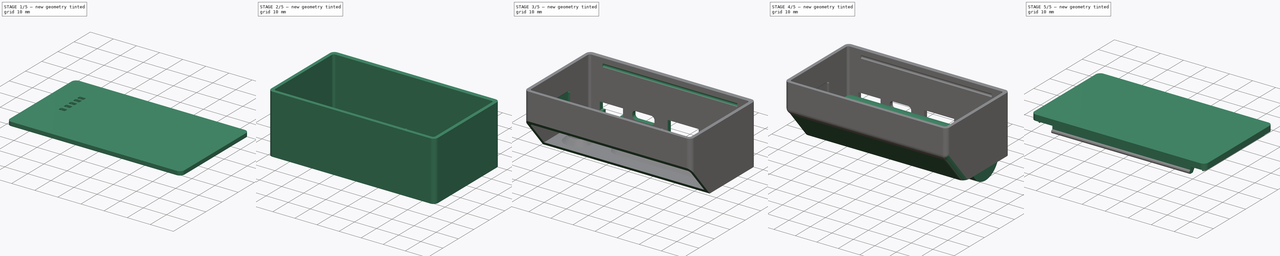
[diagram: build sequence overview — one tinted view per stage of 5, left to right]
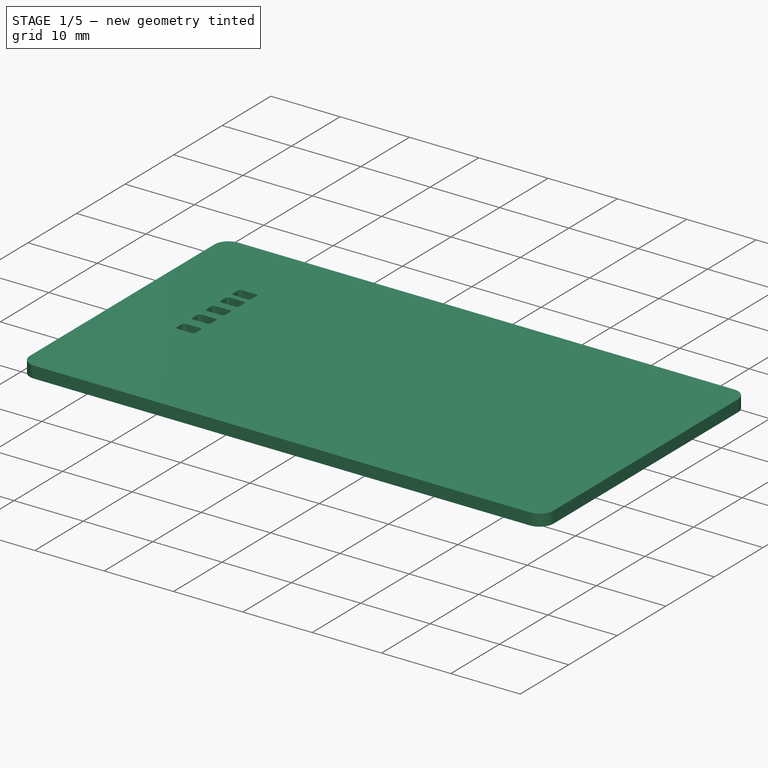
[diagram: stage 1 of 5 — iso view after this stage's code; geometry added in this stage tinted green]
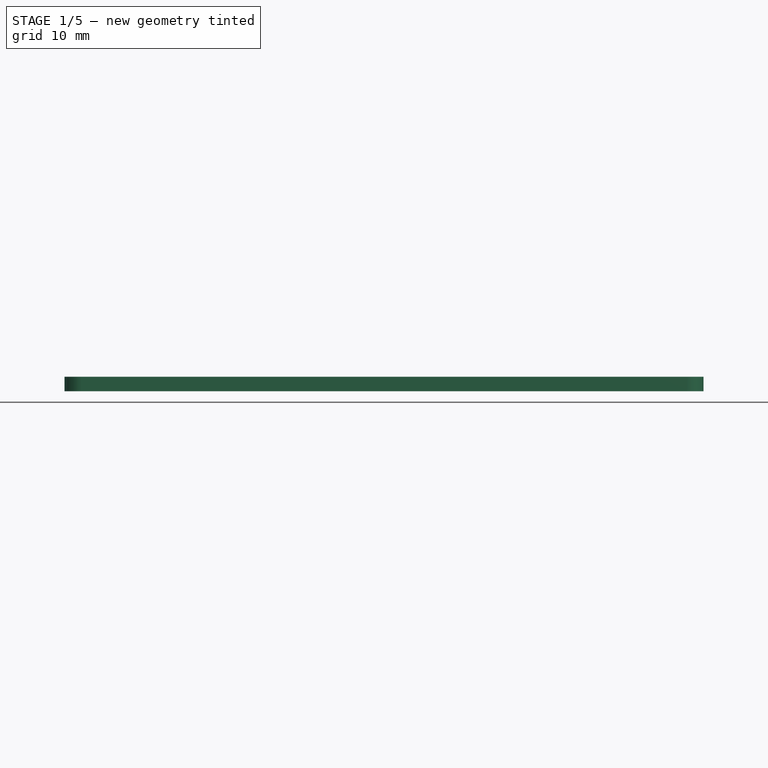
[diagram: stage 1 of 5 — front view after this stage's code; geometry added in this stage tinted green]
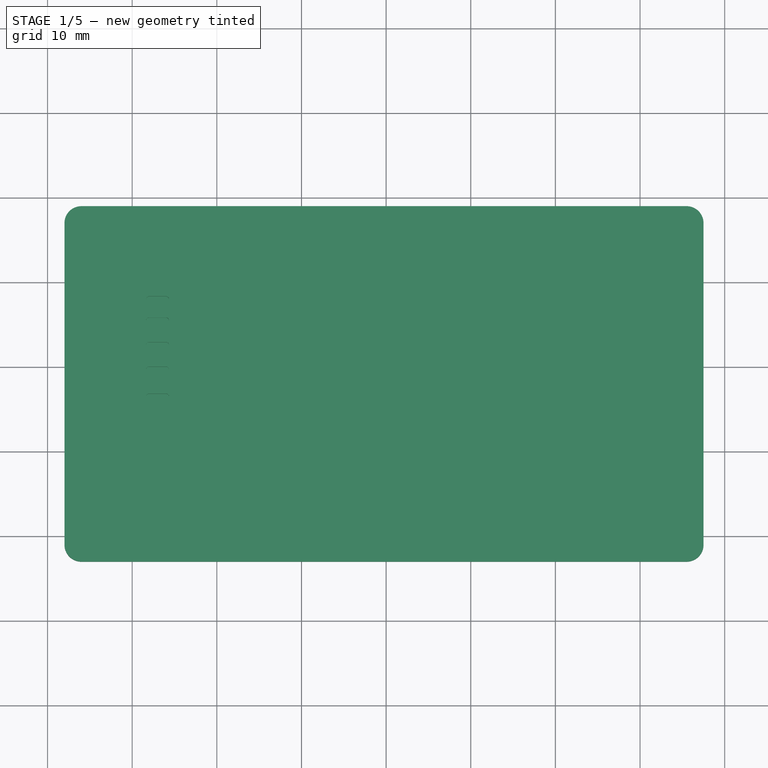
[diagram: stage 1 of 5 — top view after this stage's code; geometry added in this stage tinted green]
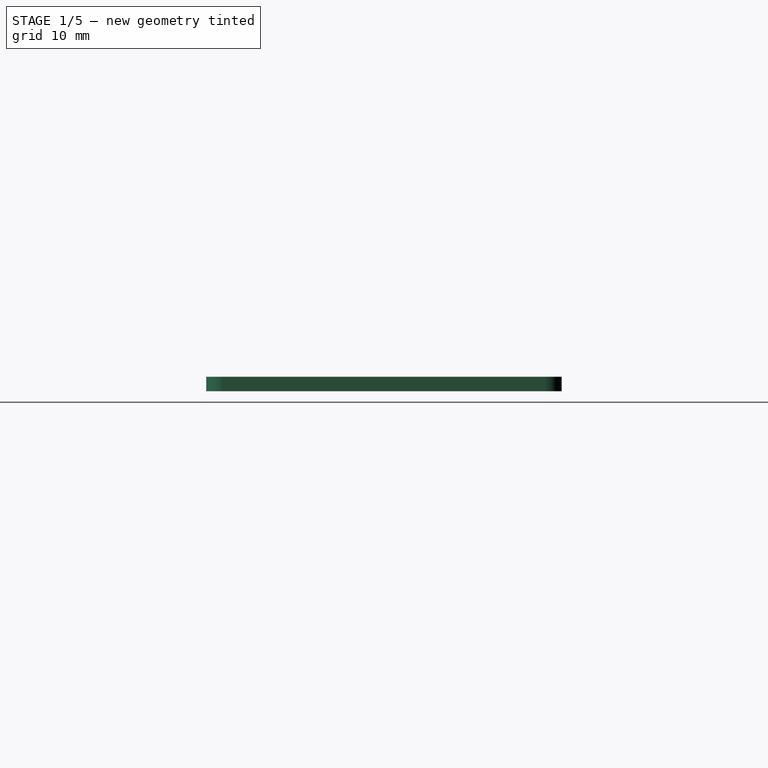
[diagram: stage 1 of 5 — right view after this stage's code; geometry added in this stage tinted green]
FCSTD DOCUMENT  (FreeCAD 1.0R38641 +468 (Git))
Label: powerbank
License: All rights reserved
LicenseURL: https://en.wikipedia.org/wiki/All_rights_reserved
objects: Part::Feature×65, Sketcher::SketchObject×24, PartDesign::Pad×17, App::Part×13, PartDesign::SubShapeBinder×6, PartDesign::Body×5, PartDesign::Pocket×5, PartDesign::Chamfer×3, Image::ImagePlane×1, PartDesign::FeatureBase×1, PartDesign::Fillet×1, PartDesign::AdditivePipe×1
note: 207 computed .brp shape members not serialized (recipe doc carries the construction recipe); baked Part::Feature solids carry a one-line shape summary decoded from their .brp

FEATURE [Image::ImagePlane] powerbank_pcb
  Placement = pos=(-0.7,1.1,0) rot=(0,0,1;0rad)
  XSize = 74
  YSize = 30
FEATURE [Sketcher::SketchObject] Sketch  label="PCB"
  ArcFitTolerance = 1e-06
  AttachmentSupport = -> [XY_Plane002]
  FullyConstrained = true
  MakeInternals = false
  MapMode = 5
  sketch-geometry (12):
    g0: LineSegment StartX=-36 StartY=-13.5 StartZ=0 EndX=36 EndY=-13.5 EndZ=0
    g1: LineSegment StartX=36 StartY=-13.5 StartZ=0 EndX=36 EndY=13.5 EndZ=0
    g2: LineSegment StartX=36 StartY=13.5 StartZ=0 EndX=-34.0908 EndY=13.5 EndZ=0
    g3: LineSegment StartX=-36 StartY=11.5908 StartZ=0 EndX=-36 EndY=-13.5 EndZ=0
    g4: GeomPoint [constr] X=0 Y=0 Z=0
    g5: LineSegment StartX=-34.0908 StartY=13.5 StartZ=0 EndX=-36 EndY=11.5908 EndZ=0
    g6: Circle CenterX=-34.25 CenterY=10.65 CenterZ=0 NormalX=0 NormalY=0 NormalZ=1 AngleXU=0 Radius=0.95
    g7: Circle CenterX=33.85 CenterY=-7.55 CenterZ=0 NormalX=0 NormalY=0 NormalZ=1 AngleXU=0 Radius=0.95
    g8: Circle CenterX=33.85 CenterY=-10.75 CenterZ=0 NormalX=0 NormalY=0 NormalZ=1 AngleXU=0 Radius=0.95
    g9: Circle CenterX=-2.45 CenterY=11.45 CenterZ=0 NormalX=0 NormalY=0 NormalZ=1 AngleXU=0 Radius=0.95
    g10: Circle CenterX=-29.45 CenterY=-11.25 CenterZ=0 NormalX=0 NormalY=0 NormalZ=1 AngleXU=0 Radius=0.55
    g11: Circle CenterX=17.95 CenterY=-11.25 CenterZ=0 NormalX=0 NormalY=0 NormalZ=1 AngleXU=0 Radius=0.55
  constraints (33):
    c: Coincident(g0,g1)
    c: Coincident(g1,g2)
    c: Coincident(g3,g0)
    c: Horizontal(g0)
    c: Horizontal(g2)
    c: Vertical(g1)
    c: Vertical(g3)
    c: Symmetric(g2,g0,g4)
    c: Distance(g1,g3) = 72
    c: Coincident(g4,g-1)
    c: Diameter(g6) = 1.9
    c: Equal(g6,g7)
    c: Equal(g8,g7)
    c: Vertical(g7,g8)
    c: Angle(g2,g5) = 0.785398
    c: Distance(g5,g5) = 2.7
    c: Distance(g6,g3) = 0.8
    c: Distance(g6,g2) = 1.9
    c: Distance(g7,g1) = 1.2
    c: Distance(g8,g0) = 1.8
    c: Distance(g7,g0) = 5
    c: Coincident(g2,g5)
    c: Coincident(g3,g5)
    c: DistanceY(g1,g1) = 27
    c: Equal(g9,g6)
    c: Distance(g9,g2) = 1.1
    c: Distance(g9,g1) = 37.5
    c: Equal(g10,g11)
    c: Horizontal(g10,g11)
    c: Diameter(g10) = 1.1
    c: Distance(g10,g0) = 1.7
    c: Distance(g10,g3) = 6
    c: Distance(g11,g1) = 17.5
FEATURE [PartDesign::Pad] Pad  label="PCB_Pad"
  Direction = (0,0,1)
  Length = 1
  Length2 = 10
  Profile = -> Sketch
  ReferenceAxis = -> Sketch [N_Axis]
  Refine = true
  Reversed = true
  Suppressed = false
  Type = 0
FEATURE [Sketcher::SketchObject] Sketch001  label="Inductor"
  ArcFitTolerance = 1e-06
  AttachmentSupport = -> [Pad]
  ExternalGeometry = -> [Pad]
  FullyConstrained = true
  MakeInternals = false
  MapMode = 5
  sketch-geometry (5):
    g0: LineSegment StartX=-24.4 StartY=-12 StartZ=0 EndX=-14.4 EndY=-12 EndZ=0
    g1: LineSegment StartX=-14.4 StartY=-12 StartZ=0 EndX=-14.4 EndY=-2 EndZ=0
    g2: LineSegment StartX=-14.4 StartY=-2 StartZ=0 EndX=-24.4 EndY=-2 EndZ=0
    g3: LineSegment StartX=-24.4 StartY=-2 StartZ=0 EndX=-24.4 EndY=-12 EndZ=0
    g4: GeomPoint [constr] X=-19.4 Y=-7 Z=0
  constraints (13):
    c: Coincident(g0,g1)
    c: Coincident(g1,g2)
    c: Coincident(g2,g3)
    c: Coincident(g3,g0)
    c: Horizontal(g0)
    c: Horizontal(g2)
    c: Vertical(g1)
    c: Vertical(g3)
    c: Symmetric(g2,g0,g4)
    c: Distance(g1,g3) = 10
    c: Distance(g0,g2) = 10
    c: Distance(g-3,g2) = 11.5
    c: Distance(g-4,g1) = 21.6
FEATURE [PartDesign::Pad] Pad001  label="Inductor_Pad"
  BaseFeature = -> Pad
  Direction = (0,0,1)
  Length = 4
  Length2 = 10
  Profile = -> Sketch001
  ReferenceAxis = -> Sketch001 [N_Axis]
  Refine = true
  Suppressed = false
  Type = 0
FEATURE [Part::Feature] Part__Feature  label="1"
  shape: bbox 0.6 x 0.7 x 0.6087 mm, 10 faces (baked)
FEATURE [Part::Feature] Part__Feature001  label="1001"
  shape: bbox 0.6 x 0.99 x 0.255 mm, 8 faces (baked)
FEATURE [Part::Feature] Part__Feature002  label="1002"
  shape: bbox 0.6 x 0.7 x 0.6087 mm, 10 faces (baked)
FEATURE [Part::Feature] Part__Feature003  label="1003"
  shape: bbox 0.6 x 0.99 x 0.255 mm, 8 faces (baked)
FEATURE [App::Part] _  label="1004"
  Group = -> [Part__Feature,Part__Feature001,Part__Feature002,Part__Feature003]
  Origin = -> Origin003
FEATURE [Part::Feature] Part__Feature004  label="2"
  shape: bbox 7.2 x 3.65 x 0.2 mm, 50 faces (baked)
FEATURE [Part::Feature] Part__Feature005  label="3"
  shape: bbox 0.3 x 0.6 x 0.65 mm, 8 faces (baked)
FEATURE [Part::Feature] Part__Feature006  label="3001"
  shape: bbox 0.3 x 0.6 x 0.65 mm, 8 faces (baked)
FEATURE [App::Part] _001  label="3002"
  Group = -> [Part__Feature005,Part__Feature006]
  Origin = -> Origin004
FEATURE [Part::Feature] Part__Feature007  label="4"
  shape: bbox 3 x 1.5 x 1.2 mm, 18 faces (baked)
FEATURE [Part::Feature] Part__Feature008  label="5"
  shape: bbox 0.7032 x 1.603 x 0.6032 mm, 18 faces (baked)
FEATURE [Part::Feature] Part__Feature009  label="5001"
  shape: bbox 0.7032 x 1.603 x 0.6032 mm, 18 faces (baked)
FEATURE [App::Part] _002  label="5002"
  Group = -> [Part__Feature008,Part__Feature009]
  Origin = -> Origin005
FEATURE [Part::Feature] Part__Feature010  label="TL3330AFxxxQG"
  shape: bbox 4 x 2.44 x 0.93 mm, 13 faces (baked)
FEATURE [Part::Feature] Part__Feature011  label="TL3330AFxxxQG001"
  shape: bbox 6.9 x 3.55 x 2.3 mm, 138 faces (baked)
FEATURE [App::Part] TL3330AFxxxQG  label="TL3330AFxxxQG002"
  Group = -> [Part__Feature010,Part__Feature011]
  Origin = -> Origin006
FEATURE [Part::Feature] Part__Feature012  label="Logo"
  Placement = pos=(3,-0.893603,1.95247) rot=(0.57735,0.57735,0.57735;2.0944rad)
  shape: bbox 0.002 x 0.2197 x 0.2505 mm, 13 faces (baked)
FEATURE [Part::Feature] Part__Feature013  label="Logo001"
  Placement = pos=(3,-0.893603,1.95247) rot=(0.57735,0.57735,0.57735;2.0944rad)
  shape: bbox 0.002 x 0.2181 x 0.109 mm, 5 faces (baked)
FEATURE [Part::Feature] Part__Feature014  label="Logo002"
  Placement = pos=(3,-0.893603,1.95247) rot=(0.57735,0.57735,0.57735;2.0944rad)
  shape: bbox 0.002 x 0.09274 x 0.1855 mm, 5 faces (baked)
FEATURE [Part::Feature] Part__Feature015  label="Logo003"
  Placement = pos=(3,-0.893603,1.95247) rot=(0.57735,0.57735,0.57735;2.0944rad)
  shape: bbox 0.002 x 0.09529 x 0.1906 mm, 5 faces (baked)
FEATURE [App::Part] Logo  label="Logo004"
  Group = -> [Part__Feature012,Part__Feature013,Part__Feature014,Part__Feature015]
  Origin = -> Origin007
FEATURE [App::Part] _003  label="1005"
  Group = -> [_,Part__Feature004,_001,Part__Feature007,_002,TL3330AFxxxQG,Logo]
  Origin = -> Origin008
  Placement = pos=(-1.17e-14,1.7455,1.8) rot=(0,0.707107,-0.707107;3.14159rad)
FEATURE [App::Part] _004  label="Switch"
  Group = -> [_003]
  Origin = -> Origin009
  Placement = pos=(-35.1,-4.4,0) rot=(0,0,1;4.71239rad)
FEATURE [Sketcher::SketchObject] Sketch002  label="LEDs"
  ArcFitTolerance = 1e-06
  AttachmentSupport = -> [Pad001]
  ExternalGeometry = -> [Pad001]
  FullyConstrained = true
  MakeInternals = false
  MapMode = 5
  Placement = pos=(0,0,-1) rot=(1,0,0;3.14159rad)
  sketch-geometry (27):
    g0: LineSegment StartX=-28 StartY=7 StartZ=0 EndX=-26 EndY=7 EndZ=0
    g1: LineSegment StartX=-26 StartY=7 StartZ=0 EndX=-26 EndY=8 EndZ=0
    g2: LineSegment StartX=-26 StartY=8 StartZ=0 EndX=-28 EndY=8 EndZ=0
    g3: LineSegment StartX=-28 StartY=8 StartZ=0 EndX=-28 EndY=7 EndZ=0
    g4: GeomPoint [constr] X=-27 Y=7.5 Z=0
    g5: LineSegment [constr] StartX=-27 StartY=13.5 StartZ=0 EndX=-27 EndY=-13.5 EndZ=0
    g6: LineSegment [constr] StartX=-26 StartY=13.5 StartZ=0 EndX=-26 EndY=-13.5 EndZ=0
    g7: LineSegment StartX=-28 StartY=3.8 StartZ=0 EndX=-26 EndY=3.8 EndZ=0
    g8: LineSegment StartX=-26 StartY=3.8 StartZ=0 EndX=-26 EndY=4.8 EndZ=0
    g9: LineSegment StartX=-26 StartY=4.8 StartZ=0 EndX=-28 EndY=4.8 EndZ=0
    g10: LineSegment StartX=-28 StartY=4.8 StartZ=0 EndX=-28 EndY=3.8 EndZ=0
    g11: GeomPoint [constr] X=-27 Y=4.3 Z=0
    g12: LineSegment StartX=-28 StartY=0.9 StartZ=0 EndX=-26 EndY=0.9 EndZ=0
    g13: LineSegment StartX=-26 StartY=0.9 StartZ=0 EndX=-26 EndY=1.9 EndZ=0
    g14: LineSegment StartX=-26 StartY=1.9 StartZ=0 EndX=-28 EndY=1.9 EndZ=0
    g15: LineSegment StartX=-28 StartY=1.9 StartZ=0 EndX=-28 EndY=0.9 EndZ=0
    g16: GeomPoint [constr] X=-27 Y=1.4 Z=0
    g17: LineSegment StartX=-28 StartY=-2 StartZ=0 EndX=-26 EndY=-2 EndZ=0
    g18: LineSegment StartX=-26 StartY=-2 StartZ=0 EndX=-26 EndY=-1 EndZ=0
    g19: LineSegment StartX=-26 StartY=-1 StartZ=0 EndX=-28 EndY=-1 EndZ=0
    g20: LineSegment StartX=-28 StartY=-1 StartZ=0 EndX=-28 EndY=-2 EndZ=0
    g21: GeomPoint [constr] X=-27 Y=-1.5 Z=0
    g22: LineSegment StartX=-28 StartY=-3.5 StartZ=0 EndX=-26 EndY=-3.5 EndZ=0
    g23: LineSegment StartX=-26 StartY=-3.5 StartZ=0 EndX=-26 EndY=-4.5 EndZ=0
    g24: LineSegment StartX=-26 StartY=-4.5 StartZ=0 EndX=-28 EndY=-4.5 EndZ=0
    g25: LineSegment StartX=-28 StartY=-4.5 StartZ=0 EndX=-28 EndY=-3.5 EndZ=0
    g26: GeomPoint [constr] X=-27 Y=-4 Z=0
  constraints (73):
    c: Coincident(g0,g1)
    c: Coincident(g1,g2)
    c: Coincident(g2,g3)
    c: Coincident(g3,g0)
    c: Horizontal(g0)
    c: Horizontal(g2)
    c: Vertical(g1)
    c: Vertical(g3)
    c: Symmetric(g2,g0,g4)
    c: Distance(g1,g3) = 2
    c: Distance(g0,g2) = 1
    c: PointOnObject(g5,g-3)
    c: PointOnObject(g5,g-5)
    c: Vertical(g5)
    c: PointOnObject(g4,g5)
    c: Distance(g-4,g5) = 9
    c: Distance(g-3,g0) = 6.5
    c: PointOnObject(g6,g-3)
    c: PointOnObject(g6,g-5)
    c: Vertical(g6)
    c: PointOnObject(g1,g6)
    c: Coincident(g7,g8)
    c: Coincident(g8,g9)
    c: Coincident(g9,g10)
    c: Coincident(g10,g7)
    c: Horizontal(g7)
    c: Horizontal(g9)
    c: Vertical(g8)
    c: Vertical(g10)
    c: Symmetric(g9,g7,g11)
    c: PointOnObject(g11,g5)
    c: PointOnObject(g8,g6)
    c: Coincident(g12,g13)
    c: Coincident(g13,g14)
    c: Coincident(g14,g15)
    c: Coincident(g15,g12)
    c: Horizontal(g12)
    c: Horizontal(g14)
    c: Vertical(g13)
    c: Vertical(g15)
    c: Symmetric(g14,g12,g16)
    c: PointOnObject(g16,g5)
    c: PointOnObject(g13,g6)
    c: Coincident(g17,g18)
    c: Coincident(g18,g19)
    c: Coincident(g19,g20)
    c: Coincident(g20,g17)
    c: Horizontal(g17)
    c: Horizontal(g19)
    c: Vertical(g18)
    c: Vertical(g20)
    c: Symmetric(g19,g17,g21)
    c: PointOnObject(g21,g5)
    c: PointOnObject(g18,g6)
    c: Coincident(g22,g23)
    c: Coincident(g23,g24)
    c: Coincident(g24,g25)
    c: Coincident(g25,g22)
    c: Horizontal(g22)
    c: Horizontal(g24)
    c: Vertical(g23)
    c: Vertical(g25)
    c: Symmetric(g24,g22,g26)
    c: PointOnObject(g26,g5)
    c: PointOnObject(g23,g6)
    c: Equal(g3,g10)
    c: Equal(g10,g15)
    c: Equal(g15,g20)
    c: Equal(g20,g25)
    c: Distance(g7,g-3) = 9.7
    c: Distance(g12,g-3) = 12.6
    c: Distance(g17,g-3) = 15.5
    c: Distance(g22,g-3) = 17
FEATURE [PartDesign::Pad] Pad002  label="LEDs_Pad"
  BaseFeature = -> Pad001
  Direction = (0,0,-1)
  Length = 0.5
  Length2 = 10
  Profile = -> Sketch002
  ReferenceAxis = -> Sketch002 [N_Axis]
  Refine = true
  Suppressed = false
  Type = 0
FEATURE [PartDesign::Body] Body002
  AllowCompound = false
  Group = -> [Clone]
  Origin = -> Origin015
  Placement = pos=(0,-20,0) rot=(0,0,1;0rad)
  Tip = -> Clone
FEATURE [App::Part] Part001  label="18650-1"
  Group = -> [Body001,Body002]
  Origin = -> Origin013
  Placement = pos=(0,-2,0) rot=(0,0,1;0rad)
FEATURE [PartDesign::SubShapeBinder] Binder
  BindCopyOnChange = 0
  BindMode = 0
  ClaimChildren = false
  Context = -> Part002 [Body003.Binder.]
  Fuse = false
  MakeFace = true
  OffsetFill = false
  OffsetIntersection = false
  OffsetJoinType = 0
  OffsetOpenResult = false
  PartialLoad = false
  Refine = true
  Relative = true
  Support = -> [Part[Body.Pad002.Face5]]
  _Version = 2
FEATURE [Sketcher::SketchObject] Sketch004
  ArcFitTolerance = 1e-06
  AttachmentSupport = -> [XY_Plane016]
  ExternalGeometry = -> [Binder]
  FullyConstrained = false
  MakeInternals = false
  MapMode = 5
  sketch-geometry (79):
    g0: LineSegment StartX=-38 StartY=7 StartZ=0 EndX=-38 EndY=-31 EndZ=0
    g1: LineSegment StartX=-36 StartY=-33 StartZ=0 EndX=35.5 EndY=-33 EndZ=0
    g2: LineSegment StartX=37.5 StartY=-31 StartZ=0 EndX=37.5 EndY=7 EndZ=0
    g3: LineSegment StartX=35.5 StartY=9 StartZ=0 EndX=-36 EndY=9 EndZ=0
    g4: ArcOfCircle CenterX=-36 CenterY=7 CenterZ=0 NormalX=0 NormalY=0 NormalZ=1 AngleXU=0 Radius=2 StartAngle=1.5708 EndAngle=3.14159
    g5: ArcOfCircle CenterX=-36 CenterY=-31 CenterZ=0 NormalX=0 NormalY=0 NormalZ=1 AngleXU=0 Radius=2 StartAngle=3.14159 EndAngle=4.71239
    g6: ArcOfCircle CenterX=35.5 CenterY=-31 CenterZ=0 NormalX=0 NormalY=0 NormalZ=1 AngleXU=0 Radius=2 StartAngle=4.71239 EndAngle=6.28319
    g7: ArcOfCircle CenterX=35.5 CenterY=7 CenterZ=0 NormalX=0 NormalY=0 NormalZ=1 AngleXU=0 Radius=2 StartAngle=0 EndAngle=1.5708
    g8: GeomPoint [constr] X=-38 Y=9 Z=0
    g9: GeomPoint [constr] X=37.5 Y=-33 Z=0
    g10: LineSegment [constr] StartX=-36 StartY=5.09081 StartZ=0 EndX=-38 EndY=5.09081 EndZ=0
    g11: LineSegment [constr] StartX=36 StartY=7 StartZ=0 EndX=37.5 EndY=7 EndZ=0
    g12: LineSegment [constr] StartX=-36 StartY=-20 StartZ=0 EndX=-36 EndY=-33 EndZ=0
    g13: LineSegment [constr] StartX=36 StartY=7 StartZ=0 EndX=36 EndY=9 EndZ=0
    g14: LineSegment StartX=-28 StartY=-14.5 StartZ=0 EndX=-26 EndY=-14.5 EndZ=0
    g15: LineSegment StartX=-26 StartY=-14.5 StartZ=0 EndX=-26 EndY=-13.5 EndZ=0
    g16: LineSegment StartX=-26 StartY=-13.5 StartZ=0 EndX=-28 EndY=-13.5 EndZ=0
    g17: LineSegment StartX=-28 StartY=-13.5 StartZ=0 EndX=-28 EndY=-14.5 EndZ=0
    g18: LineSegment StartX=-26 StartY=-10.3 StartZ=0 EndX=-28 EndY=-10.3 EndZ=0
    g19: LineSegment StartX=-28 StartY=-10.3 StartZ=0 EndX=-28 EndY=-11.3 EndZ=0
    g20: LineSegment StartX=-28 StartY=-11.3 StartZ=0 EndX=-26 EndY=-11.3 EndZ=0
    g21: LineSegment StartX=-26 StartY=-11.3 StartZ=0 EndX=-26 EndY=-10.3 EndZ=0
    g22: LineSegment StartX=-28 StartY=-8.4 StartZ=0 EndX=-26 EndY=-8.4 EndZ=0
    g23: LineSegment StartX=-26 StartY=-8.4 StartZ=0 EndX=-26 EndY=-7.4 EndZ=0
    g24: LineSegment StartX=-26 StartY=-7.4 StartZ=0 EndX=-28 EndY=-7.4 EndZ=0
    g25: LineSegment StartX=-28 StartY=-7.4 StartZ=0 EndX=-28 EndY=-8.4 EndZ=0
    g26: LineSegment StartX=-26 StartY=-4.5 StartZ=0 EndX=-28 EndY=-4.5 EndZ=0
    g27: LineSegment StartX=-28 StartY=-4.5 StartZ=0 EndX=-28 EndY=-5.5 EndZ=0
    g28: LineSegment StartX=-28 StartY=-5.5 StartZ=0 EndX=-26 EndY=-5.5 EndZ=0
    g29: LineSegment StartX=-26 StartY=-5.5 StartZ=0 EndX=-26 EndY=-4.5 EndZ=0
    g30: LineSegment StartX=-26 StartY=-2 StartZ=0 EndX=-28 EndY=-2 EndZ=0
    g31: LineSegment StartX=-28 StartY=-2 StartZ=0 EndX=-28 EndY=-3 EndZ=0
    g32: LineSegment StartX=-28 StartY=-3 StartZ=0 EndX=-26 EndY=-3 EndZ=0
    g33: LineSegment StartX=-26 StartY=-3 StartZ=0 EndX=-26 EndY=-2 EndZ=0
    g34: LineSegment StartX=-25.65 StartY=-3 StartZ=0 EndX=-25.65 EndY=-2 EndZ=0
    g35: ArcOfCircle CenterX=-26 CenterY=-2 CenterZ=0 NormalX=0 NormalY=0 NormalZ=-1 AngleXU=0 Radius=0.35 StartAngle=1.5708 EndAngle=3.14159
    g36: LineSegment StartX=-26 StartY=-1.65 StartZ=0 EndX=-28 EndY=-1.65 EndZ=0
    g37: ArcOfCircle CenterX=-28 CenterY=-2 CenterZ=0 NormalX=0 NormalY=0 NormalZ=-1 AngleXU=-1.5708 Radius=0.35 StartAngle=1.5708 EndAngle=3.14159
    g38: LineSegment StartX=-28.35 StartY=-2 StartZ=0 EndX=-28.35 EndY=-3 EndZ=0
    g39: ArcOfCircle CenterX=-28 CenterY=-3 CenterZ=0 NormalX=0 NormalY=0 NormalZ=-1 AngleXU=-3.14159 Radius=0.35 StartAngle=1.5708 EndAngle=3.14159
    g40: LineSegment StartX=-28 StartY=-3.35 StartZ=0 EndX=-26 EndY=-3.35 EndZ=0
    g41: ArcOfCircle CenterX=-26 CenterY=-3 CenterZ=0 NormalX=0 NormalY=0 NormalZ=-1 AngleXU=1.5708 Radius=0.35 StartAngle=1.5708 EndAngle=3.14159
    g42: LineSegment StartX=-28.35 StartY=-13.5 StartZ=0 EndX=-28.35 EndY=-14.5 EndZ=0
    g43: ArcOfCircle CenterX=-28 CenterY=-14.5 CenterZ=0 NormalX=0 NormalY=0 NormalZ=-1 AngleXU=-3.14159 Radius=0.35 StartAngle=1.5708 EndAngle=3.14159
    g44: LineSegment StartX=-28 StartY=-14.85 StartZ=0 EndX=-26 EndY=-14.85 EndZ=0
    g45: ArcOfCircle CenterX=-26 CenterY=-14.5 CenterZ=0 NormalX=0 NormalY=0 NormalZ=-1 AngleXU=1.5708 Radius=0.35 StartAngle=1.5708 EndAngle=3.14159
    g46: LineSegment StartX=-25.65 StartY=-14.5 StartZ=0 EndX=-25.65 EndY=-13.5 EndZ=0
    g47: ArcOfCircle CenterX=-26 CenterY=-13.5 CenterZ=0 NormalX=0 NormalY=0 NormalZ=-1 AngleXU=0 Radius=0.35 StartAngle=1.5708 EndAngle=3.14159
    g48: LineSegment StartX=-26 StartY=-13.15 StartZ=0 EndX=-28 EndY=-13.15 EndZ=0
    g49: ArcOfCircle CenterX=-28 CenterY=-13.5 CenterZ=0 NormalX=0 NormalY=0 NormalZ=-1 AngleXU=-1.5708 Radius=0.35 StartAngle=1.5708 EndAngle=3.14159
    g50: LineSegment StartX=-25.65 StartY=-11.3 StartZ=0 EndX=-25.65 EndY=-10.3 EndZ=0
    g51: ArcOfCircle CenterX=-26 CenterY=-10.3 CenterZ=0 NormalX=0 NormalY=0 NormalZ=-1 AngleXU=0 Radius=0.35 StartAngle=1.5708 EndAngle=3.14159
    g52: LineSegment StartX=-26 StartY=-9.95 StartZ=0 EndX=-28 EndY=-9.95 EndZ=0
    g53: ArcOfCircle CenterX=-28 CenterY=-10.3 CenterZ=0 NormalX=0 NormalY=0 NormalZ=-1 AngleXU=-1.5708 Radius=0.35 StartAngle=1.5708 EndAngle=3.14159
    g54: LineSegment StartX=-28.35 StartY=-10.3 StartZ=0 EndX=-28.35 EndY=-11.3 EndZ=0
    g55: ArcOfCircle CenterX=-28 CenterY=-11.3 CenterZ=0 NormalX=0 NormalY=0 NormalZ=-1 AngleXU=-3.14159 Radius=0.35 StartAngle=1.5708 EndAngle=3.14159
    g56: LineSegment StartX=-28 StartY=-11.65 StartZ=0 EndX=-26 EndY=-11.65 EndZ=0
    g57: ArcOfCircle CenterX=-26 CenterY=-11.3 CenterZ=0 NormalX=0 NormalY=0 NormalZ=-1 AngleXU=1.5708 Radius=0.35 StartAngle=1.5708 EndAngle=3.14159
    g58: LineSegment StartX=-28.35 StartY=-7.4 StartZ=0 EndX=-28.35 EndY=-8.4 EndZ=0
    g59: ArcOfCircle CenterX=-28 CenterY=-8.4 CenterZ=0 NormalX=0 NormalY=0 NormalZ=-1 AngleXU=-3.14159 Radius=0.35 StartAngle=1.5708 EndAngle=3.14159
    g60: LineSegment StartX=-28 StartY=-8.75 StartZ=0 EndX=-26 EndY=-8.75 EndZ=0
    g61: ArcOfCircle CenterX=-26 CenterY=-8.4 CenterZ=0 NormalX=0 NormalY=0 NormalZ=-1 AngleXU=1.5708 Radius=0.35 StartAngle=1.5708 EndAngle=3.14159
    g62: LineSegment StartX=-25.65 StartY=-8.4 StartZ=0 EndX=-25.65 EndY=-7.4 EndZ=0
    g63: ArcOfCircle CenterX=-26 CenterY=-7.4 CenterZ=0 NormalX=0 NormalY=0 NormalZ=-1 AngleXU=0 Radius=0.35 StartAngle=1.5708 EndAngle=3.14159
    g64: LineSegment StartX=-26 StartY=-7.05 StartZ=0 EndX=-28 EndY=-7.05 EndZ=0
    g65: ArcOfCircle CenterX=-28 CenterY=-7.4 CenterZ=0 NormalX=0 NormalY=0 NormalZ=-1 AngleXU=-1.5708 Radius=0.35 StartAngle=1.5708 EndAngle=3.14159
    g66: LineSegment StartX=-25.65 StartY=-5.5 StartZ=0 EndX=-25.65 EndY=-4.5 EndZ=0
    g67: ArcOfCircle CenterX=-26 CenterY=-4.5 CenterZ=0 NormalX=0 NormalY=0 NormalZ=-1 AngleXU=0 Radius=0.35 StartAngle=1.5708 EndAngle=3.14159
    g68: LineSegment StartX=-26 StartY=-4.15 StartZ=0 EndX=-28 EndY=-4.15 EndZ=0
    g69: ArcOfCircle CenterX=-28 CenterY=-4.5 CenterZ=0 NormalX=0 NormalY=0 NormalZ=-1 AngleXU=-1.5708 Radius=0.35 StartAngle=1.5708 EndAngle=3.14159
    g70: LineSegment StartX=-28.35 StartY=-4.5 StartZ=0 EndX=-28.35 EndY=-5.5 EndZ=0
    g71: ArcOfCircle CenterX=-28 CenterY=-5.5 CenterZ=0 NormalX=0 NormalY=0 NormalZ=-1 AngleXU=-3.14159 Radius=0.35 StartAngle=1.5708 EndAngle=3.14159
    g72: LineSegment StartX=-28 StartY=-5.85 StartZ=0 EndX=-26 EndY=-5.85 EndZ=0
    g73: ArcOfCircle CenterX=-26 CenterY=-5.5 CenterZ=0 NormalX=0 NormalY=0 NormalZ=-1 AngleXU=1.5708 Radius=0.35 StartAngle=1.5708 EndAngle=3.14159
    g74: LineSegment [constr] StartX=-27.9999 StartY=-3.35 StartZ=0 EndX=-27.9999 EndY=-3 EndZ=0
    g75: LineSegment [constr] StartX=-26 StartY=-13.15 StartZ=0 EndX=-26 EndY=-13.5 EndZ=0
    g76: LineSegment [constr] StartX=-28 StartY=-11.65 StartZ=0 EndX=-28 EndY=-11.3 EndZ=0
    g77: LineSegment [constr] StartX=-26 StartY=-7.05 StartZ=0 EndX=-26 EndY=-7.4 EndZ=0
    g78: LineSegment [constr] StartX=-28 StartY=-5.85 StartZ=0 EndX=-28 EndY=-5.5 EndZ=0
  constraints (181):
    c: Tangent(g0,g4) = -1.5708
    c: Tangent(g0,g5) = -1.5708
    c: Tangent(g1,g5) = -1.5708
    c: Tangent(g1,g6) = -1.5708
    c: Tangent(g2,g6) = -1.5708
    c: Tangent(g2,g7) = -1.5708
    c: Tangent(g3,g7) = -1.5708
    c: Tangent(g3,g4) = -1.5708
    c: Vertical(g0)
    c: Vertical(g2)
    c: Horizontal(g1)
    c: Horizontal(g3)
    c: Equal(g4,g5)
    c: Equal(g5,g6)
    c: Equal(g6,g7)
    c: PointOnObject(g8,g0)
    c: PointOnObject(g8,g3)
    c: PointOnObject(g9,g1)
    c: PointOnObject(g9,g2)
    c: Radius(g5) = 2
    c: Distance(g3,g1) = 42
    c: Coincident(g10,g-3)
    c: PointOnObject(g10,g0)
    c: Horizontal(g10)
    c: Coincident(g11,g-4)
    c: PointOnObject(g11,g2)
    c: Horizontal(g11)
    c: Coincident(g12,g-3)
    c: PointOnObject(g12,g1)
    c: Vertical(g12)
    c: Coincident(g13,g11)
    c: PointOnObject(g13,g3)
    c: Vertical(g13)
    c: Coincident(g14,g15)
    c: Coincident(g15,g16)
    c: Coincident(g16,g17)
    c: Coincident(g17,g14)
    c: Horizontal(g14)
    c: Horizontal(g16)
    c: Vertical(g15)
    c: Vertical(g17)
    c: Coincident(g14,g-5)
    c: Coincident(g15,g-6)
    c: Coincident(g18,g19)
    c: Coincident(g19,g20)
    c: Coincident(g20,g21)
    c: Coincident(g21,g18)
    c: Horizontal(g18)
    c: Horizontal(g20)
    c: Vertical(g19)
    c: Vertical(g21)
    c: Coincident(g18,g-7)
    c: Coincident(g19,g-8)
    c: Coincident(g22,g23)
    c: Coincident(g23,g24)
    c: Coincident(g24,g25)
    c: Coincident(g25,g22)
    c: Horizontal(g22)
    c: Horizontal(g24)
    c: Vertical(g23)
    c: Vertical(g25)
    c: Coincident(g22,g-9)
    c: Coincident(g23,g-10)
    c: Coincident(g26,g27)
    c: Coincident(g27,g28)
    c: Coincident(g28,g29)
    c: Coincident(g29,g26)
    c: Horizontal(g26)
    c: Horizontal(g28)
    c: Vertical(g27)
    c: Vertical(g29)
    c: Coincident(g26,g-11)
    c: Coincident(g27,g-12)
    c: Coincident(g30,g31)
    c: Coincident(g31,g32)
    c: Coincident(g32,g33)
    c: Coincident(g33,g30)
    c: Horizontal(g30)
    c: Horizontal(g32)
    c: Vertical(g31)
    c: Vertical(g33)
    c: Coincident(g30,g-14)
    c: Coincident(g31,g-13)
    c: Tangent(g34,g35) = -1.5708
    c: Tangent(g34,g41) = -1.5708
    c: Tangent(g35,g36) = -1.5708
    c: Tangent(g36,g37) = -1.5708
    c: Tangent(g37,g38) = -1.5708
    c: Tangent(g38,g39) = -1.5708
    c: Tangent(g39,g40) = -1.5708
    c: Tangent(g40,g41) = -1.5708
    c: Tangent(g42,g43) = -1.5708
    c: Tangent(g42,g49) = -1.5708
    c: Tangent(g43,g44) = -1.5708
    c: Tangent(g44,g45) = -1.5708
    c: Tangent(g45,g46) = -1.5708
    c: Tangent(g46,g47) = -1.5708
    c: Tangent(g47,g48) = -1.5708
    c: Tangent(g48,g49) = -1.5708
    c: Tangent(g50,g51) = -1.5708
    c: Tangent(g50,g57) = -1.5708
    c: Tangent(g51,g52) = -1.5708
    c: Tangent(g52,g53) = -1.5708
    c: Tangent(g53,g54) = -1.5708
    c: Tangent(g54,g55) = -1.5708
    c: Tangent(g55,g56) = -1.5708
    c: Tangent(g56,g57) = -1.5708
    c: Tangent(g58,g59) = -1.5708
    c: Tangent(g58,g65) = -1.5708
    c: Tangent(g59,g60) = -1.5708
    c: Tangent(g60,g61) = -1.5708
    c: Tangent(g61,g62) = -1.5708
    c: Tangent(g62,g63) = -1.5708
    c: Tangent(g63,g64) = -1.5708
    c: Tangent(g64,g65) = -1.5708
    c: Tangent(g66,g67) = -1.5708
    c: Tangent(g66,g73) = -1.5708
    c: Tangent(g67,g68) = -1.5708
    c: Tangent(g68,g69) = -1.5708
    c: Tangent(g69,g70) = -1.5708
    c: Tangent(g70,g71) = -1.5708
    c: Tangent(g71,g72) = -1.5708
    c: Tangent(g72,g73) = -1.5708
    c: Perpendicular(g74,g40)
    c: PointOnObject(g74,g40)
    c: PointOnObject(g74,g32)
    c: Perpendicular(g75,g48)
    c: PointOnObject(g75,g48)
    c: PointOnObject(g75,g16)
    c: Perpendicular(g76,g56)
    c: PointOnObject(g76,g56)
    c: PointOnObject(g76,g20)
    c: Perpendicular(g77,g64)
    c: PointOnObject(g77,g64)
    c: PointOnObject(g77,g24)
    c: Perpendicular(g78,g72)
    c: PointOnObject(g78,g72)
    c: PointOnObject(g78,g28)
    c: Coincident(g41,g32)
    c: Parallel(g34,g15)
    c: Coincident(g35,g30)
    c: Parallel(g36,g30)
    c: Coincident(g37,g30)
    c: Parallel(g38,g17)
    c: Coincident(g39,g31)
    c: Coincident(g49,g16)
    c: Parallel(g42,g17)
    c: Coincident(g43,g14)
    c: Parallel(g44,g14)
    c: Coincident(g45,g14)
    c: Parallel(g46,g15)
    c: Coincident(g47,g15)
    c: Equal(g75,g74)
    c: Coincident(g57,g20)
    c: Parallel(g50,g15)
    c: Coincident(g51,g18)
    c: Parallel(g52,g18)
    c: Coincident(g53,g18)
    c: Parallel(g54,g17)
    c: Coincident(g55,g19)
    c: Equal(g76,g74)
    c: Coincident(g65,g24)
    c: Parallel(g58,g17)
    c: Coincident(g59,g22)
    c: Parallel(g60,g22)
    c: Coincident(g61,g22)
    c: Parallel(g62,g15)
    c: Coincident(g63,g23)
    c: Equal(g77,g74)
    c: Coincident(g73,g28)
    c: Parallel(g66,g15)
    c: Coincident(g67,g26)
    c: Parallel(g68,g26)
    c: Coincident(g69,g26)
    c: Parallel(g70,g17)
    c: Coincident(g71,g27)
    c: Equal(g78,g74)
    c: Distance(g74) = 0.35
    c: Distance(g13,g13) = 2
    c: Distance(g11,g11) = 1.5
    c: Distance(g10,g10) = 2
FEATURE [PartDesign::Pad] Pad004  label="PadBottom_LEDHoles"
  Direction = (0,0,1)
  Length = 1.5
  Length2 = 10
  Profile = -> Sketch004
  ReferenceAxis = -> Sketch004 [N_Axis]
  Refine = true
  Suppressed = false
  Type = 0
FEATURE [Sketcher::SketchObject] Sketch005
  ArcFitTolerance = 1e-06
  AttachmentSupport = -> [Pad004]
  ExternalGeometry = -> [Pad004]
  FullyConstrained = true
  MakeInternals = false
  MapMode = 5
  Placement = pos=(0,0,0) rot=(1,0,0;3.14159rad)
  sketch-geometry (10):
    g0: LineSegment StartX=-38 StartY=31 StartZ=0 EndX=-38 EndY=-7 EndZ=0
    g1: LineSegment StartX=-36 StartY=-9 StartZ=0 EndX=35.5 EndY=-9 EndZ=0
    g2: LineSegment StartX=37.5 StartY=-7 StartZ=0 EndX=37.5 EndY=31 EndZ=0
    g3: LineSegment StartX=35.5 StartY=33 StartZ=0 EndX=-36 EndY=33 EndZ=0
    g4: ArcOfCircle CenterX=-36 CenterY=31 CenterZ=0 NormalX=0 NormalY=0 NormalZ=1 AngleXU=0 Radius=2 StartAngle=1.5708 EndAngle=3.14159
    g5: ArcOfCircle CenterX=-36 CenterY=-7 CenterZ=0 NormalX=0 NormalY=0 NormalZ=1 AngleXU=0 Radius=2 StartAngle=3.14159 EndAngle=4.71239
    g6: ArcOfCircle CenterX=35.5 CenterY=-7 CenterZ=0 NormalX=0 NormalY=0 NormalZ=1 AngleXU=0 Radius=2 StartAngle=4.71239 EndAngle=6.28319
    g7: ArcOfCircle CenterX=35.5 CenterY=31 CenterZ=0 NormalX=0 NormalY=0 NormalZ=1 AngleXU=0 Radius=2 StartAngle=0 EndAngle=1.5708
    g8: GeomPoint [constr] X=-38 Y=33 Z=0
    g9: GeomPoint [constr] X=37.5 Y=-9 Z=0
  constraints (21):
    c: Tangent(g0,g4) = -1.5708
    c: Tangent(g0,g5) = -1.5708
    c: Tangent(g1,g5) = -1.5708
    c: Tangent(g1,g6) = -1.5708
    c: Tangent(g2,g6) = -1.5708
    c: Tangent(g2,g7) = -1.5708
    c: Tangent(g3,g7) = -1.5708
    c: Tangent(g3,g4) = -1.5708
    c: Vertical(g0)
    c: Vertical(g2)
    c: Horizontal(g1)
    c: Equal(g4,g5)
    c: Equal(g5,g6)
    c: Equal(g6,g7)
    c: PointOnObject(g8,g0)
    c: PointOnObject(g8,g3)
    c: PointOnObject(g9,g1)
    c: PointOnObject(g9,g2)
    c: Coincident(g0,g-3)
    c: Coincident(g-3,g3)
    c: Coincident(g1,g-4)
FEATURE [PartDesign::Pad] Pad005  label="PadFullBottom"
  BaseFeature = -> Pad004
  Direction = (0,0,-1)
  Length = 0.2
  Length2 = 10
  Profile = -> Sketch005
  ReferenceAxis = -> Sketch005 [N_Axis]
  Refine = true
  Suppressed = false
  Type = 0
FEATURE [Sketcher::SketchObject] Sketch006
  ArcFitTolerance = 1e-06
  AttachmentSupport = -> [Pad002]
  ExternalGeometry = -> [Pad002]
  FullyConstrained = true
  MakeInternals = false
  MapMode = 5
  sketch-geometry (4):
    g0: LineSegment StartX=-31 StartY=7.5 StartZ=0 EndX=-21.5 EndY=7.5 EndZ=0
    g1: LineSegment StartX=-21.5 StartY=7.5 StartZ=0 EndX=-21.5 EndY=15.5 EndZ=0
    g2: LineSegment StartX=-21.5 StartY=15.5 StartZ=0 EndX=-31 EndY=15.5 EndZ=0
    g3: LineSegment StartX=-31 StartY=15.5 StartZ=0 EndX=-31 EndY=7.5 EndZ=0
  constraints (12):
    c: Coincident(g0,g1)
    c: Coincident(g1,g2)
    c: Coincident(g2,g3)
    c: Coincident(g3,g0)
    c: Horizontal(g0)
    c: Horizontal(g2)
    c: Vertical(g1)
    c: Vertical(g3)
    c: Distance(g1,g3) = 9.5
    c: Distance(g0,g2) = 8
    c: DistanceY(g0,g-3) = 6
    c: DistanceX(g-4,g2) = 5
FEATURE [PartDesign::Pad] Pad006
  BaseFeature = -> Pad002
  Direction = (0,0,1)
  Length = 3
  Length2 = 10
  Profile = -> Sketch006
  ReferenceAxis = -> Sketch006 [N_Axis]
  Refine = true
  Suppressed = false
  Type = 0
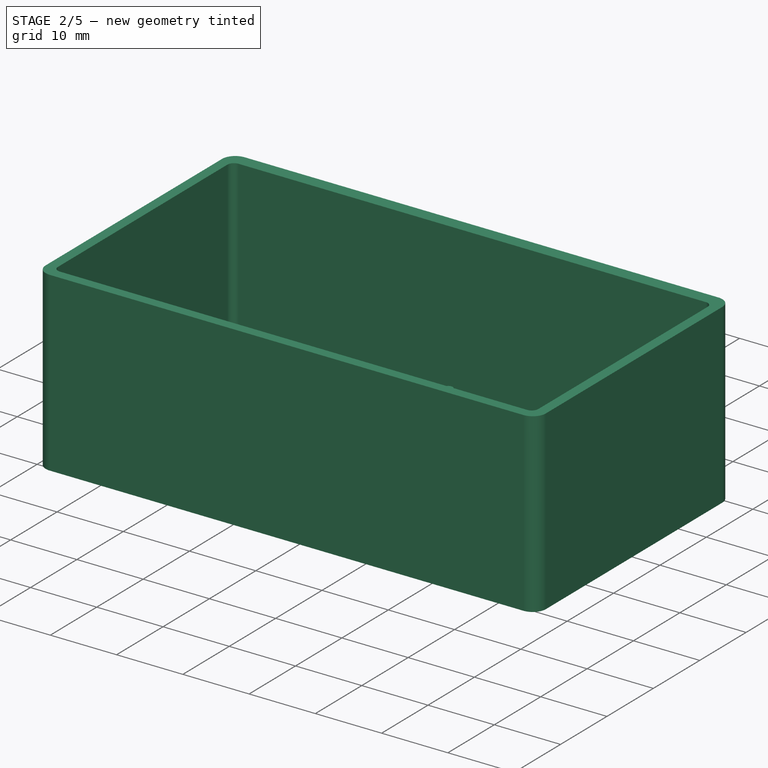
[diagram: stage 2 of 5 — iso view after this stage's code; geometry added in this stage tinted green]
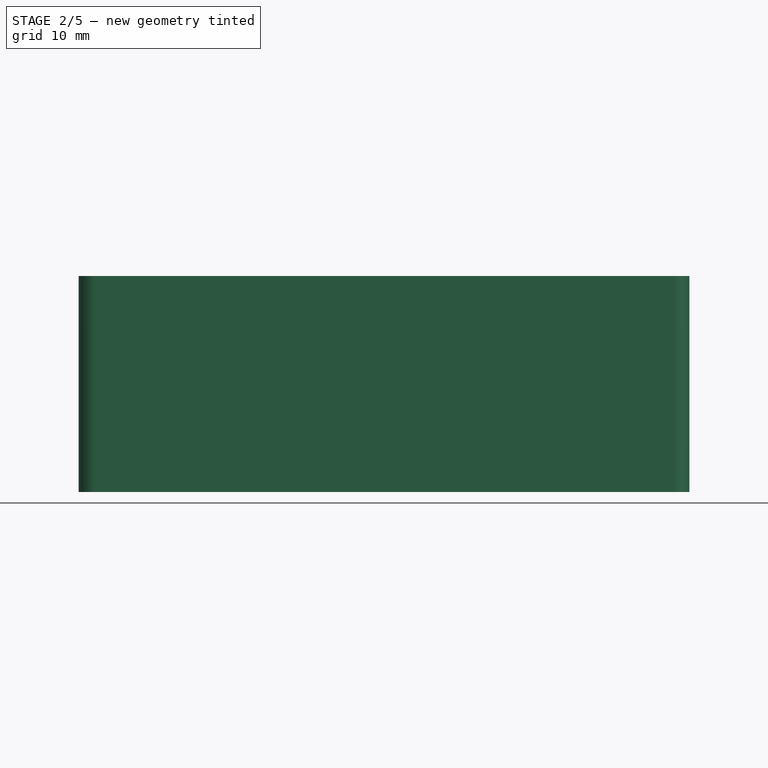
[diagram: stage 2 of 5 — front view after this stage's code; geometry added in this stage tinted green]
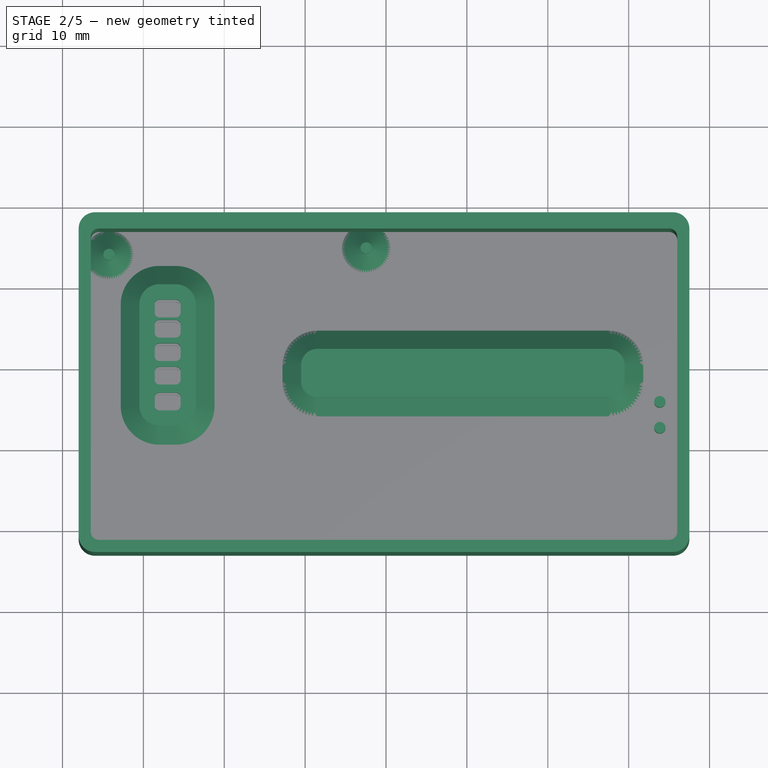
[diagram: stage 2 of 5 — top view after this stage's code; geometry added in this stage tinted green]
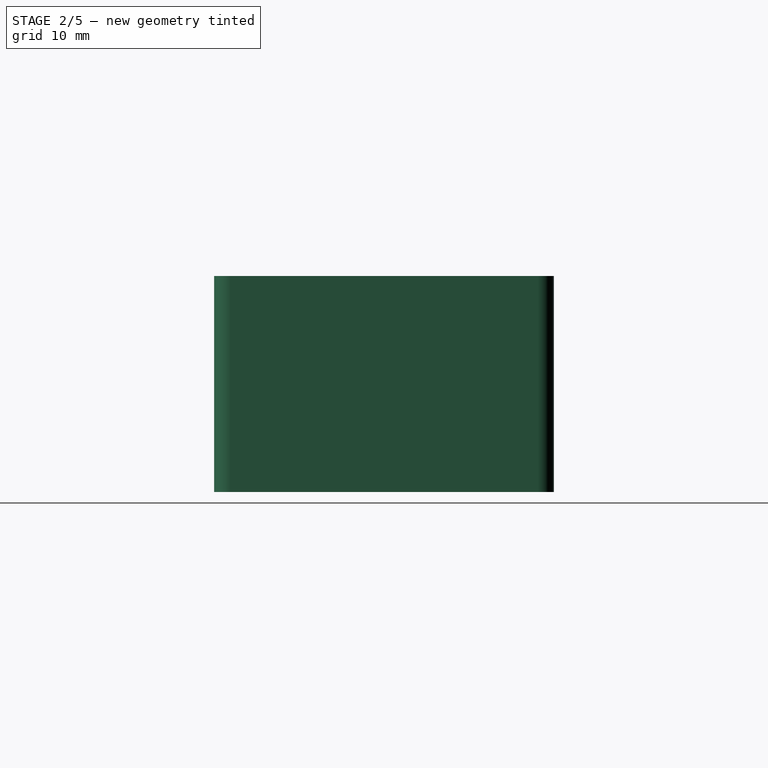
[diagram: stage 2 of 5 — right view after this stage's code; geometry added in this stage tinted green]
FEATURE [PartDesign::Body] Body
  AllowCompound = false
  Group = -> [Sketch,Pad,Sketch001,Pad001,Sketch002,Pad002,Sketch006,Pad006]
  Origin = -> Origin002
  Tip = -> Pad006
FEATURE [App::Part] Part  label="PCB_board"
  Group = -> [Body,powerbank_pcb,_004,USB_C_Receptacle_16P_TopMnt_Horizontal_GCT_USB4105_xx_A,Part__Feature052,USB1015_GF_L_A,USB1015_GF_L_A001]
  Origin = -> Origin001
  Placement = pos=(0,-6.5,-13) rot=(0,0,1;0rad)
FEATURE [PartDesign::SubShapeBinder] Binder001
  BindCopyOnChange = 0
  BindMode = 0
  ClaimChildren = false
  Context = -> Part002 [Body003.Binder001.]
  Fuse = false
  MakeFace = true
  OffsetFill = false
  OffsetIntersection = false
  OffsetJoinType = 0
  OffsetOpenResult = false
  PartialLoad = false
  Refine = true
  Relative = true
  Support = -> [Pad005[Face3]]
  _Version = 2
FEATURE [Sketcher::SketchObject] Sketch007
  ArcFitTolerance = 1e-06
  AttachmentSupport = -> [Pad005]
  ExternalGeometry = -> [Binder001,Pad005]
  FullyConstrained = false
  MakeInternals = false
  MapMode = 5
  Placement = pos=(0,0,1.5) rot=(0,0,1;0rad)
  sketch-geometry (90):
    g0: LineSegment [constr] StartX=-26 StartY=-13.15 StartZ=0 EndX=-28 EndY=-13.15 EndZ=0
    g1: LineSegment [constr] StartX=-28.35 StartY=-13.5 StartZ=0 EndX=-28.35 EndY=-14.5 EndZ=0
    g2: LineSegment [constr] StartX=-28 StartY=-14.85 StartZ=0 EndX=-26 EndY=-14.85 EndZ=0
    g3: LineSegment [constr] StartX=-25.65 StartY=-14.5 StartZ=0 EndX=-25.65 EndY=-13.5 EndZ=0
    g4: ArcOfCircle [constr] CenterX=-26 CenterY=-13.5 CenterZ=0 NormalX=0 NormalY=0 NormalZ=1 AngleXU=0 Radius=0.35 StartAngle=2.4e-15 EndAngle=1.5708
    g5: ArcOfCircle [constr] CenterX=-28 CenterY=-13.5 CenterZ=0 NormalX=0 NormalY=0 NormalZ=1 AngleXU=0 Radius=0.35 StartAngle=1.5708 EndAngle=3.14159
    g6: ArcOfCircle [constr] CenterX=-28 CenterY=-14.5 CenterZ=0 NormalX=0 NormalY=0 NormalZ=1 AngleXU=0 Radius=0.35 StartAngle=3.14159 EndAngle=4.71239
    g7: ArcOfCircle [constr] CenterX=-26 CenterY=-14.5 CenterZ=0 NormalX=0 NormalY=0 NormalZ=1 AngleXU=0 Radius=0.35 StartAngle=4.71239 EndAngle=6.28319
    g8: LineSegment [constr] StartX=-28.35 StartY=-10.3 StartZ=0 EndX=-28.35 EndY=-11.3 EndZ=0
    g9: LineSegment [constr] StartX=-28 StartY=-11.65 StartZ=0 EndX=-26 EndY=-11.65 EndZ=0
    g10: LineSegment [constr] StartX=-25.65 StartY=-11.3 StartZ=0 EndX=-25.65 EndY=-10.3 EndZ=0
    g11: LineSegment [constr] StartX=-26 StartY=-9.95 StartZ=0 EndX=-28 EndY=-9.95 EndZ=0
    g12: ArcOfCircle [constr] CenterX=-28 CenterY=-10.3 CenterZ=0 NormalX=0 NormalY=0 NormalZ=1 AngleXU=0 Radius=0.35 StartAngle=1.5708 EndAngle=3.14159
    g13: ArcOfCircle [constr] CenterX=-28 CenterY=-11.3 CenterZ=0 NormalX=0 NormalY=0 NormalZ=1 AngleXU=0 Radius=0.35 StartAngle=3.14159 EndAngle=4.71239
    g14: ArcOfCircle [constr] CenterX=-26 CenterY=-10.3 CenterZ=0 NormalX=0 NormalY=0 NormalZ=1 AngleXU=0 Radius=0.35 StartAngle=1.6e-15 EndAngle=1.5708
    g15: LineSegment [constr] StartX=-26 StartY=-7.05 StartZ=0 EndX=-28 EndY=-7.05 EndZ=0
    g16: LineSegment [constr] StartX=-28.35 StartY=-7.4 StartZ=0 EndX=-28.35 EndY=-8.4 EndZ=0
    g17: LineSegment [constr] StartX=-28 StartY=-8.75 StartZ=0 EndX=-26 EndY=-8.75 EndZ=0
    g18: LineSegment [constr] StartX=-25.65 StartY=-8.4 StartZ=0 EndX=-25.65 EndY=-7.4 EndZ=0
    g19: ArcOfCircle [constr] CenterX=-26 CenterY=-7.4 CenterZ=0 NormalX=0 NormalY=0 NormalZ=1 AngleXU=0 Radius=0.35 StartAngle=-9e-16 EndAngle=1.5708
    g20: ArcOfCircle [constr] CenterX=-28 CenterY=-7.4 CenterZ=0 NormalX=0 NormalY=0 NormalZ=1 AngleXU=0 Radius=0.35 StartAngle=1.5708 EndAngle=3.14159
    g21: ArcOfCircle [constr] CenterX=-28 CenterY=-8.4 CenterZ=0 NormalX=0 NormalY=0 NormalZ=1 AngleXU=0 Radius=0.35 StartAngle=3.14159 EndAngle=4.71239
    g22: ArcOfCircle [constr] CenterX=-26 CenterY=-8.4 CenterZ=0 NormalX=0 NormalY=0 NormalZ=1 AngleXU=0 Radius=0.35 StartAngle=4.71239 EndAngle=6.28319
    g23: LineSegment [constr] StartX=-28.35 StartY=-4.5 StartZ=0 EndX=-28.35 EndY=-5.5 EndZ=0
    g24: LineSegment [constr] StartX=-28 StartY=-5.85 StartZ=0 EndX=-26 EndY=-5.85 EndZ=0
    g25: LineSegment [constr] StartX=-25.65 StartY=-5.5 StartZ=0 EndX=-25.65 EndY=-4.5 EndZ=0
    g26: LineSegment [constr] StartX=-26 StartY=-4.15 StartZ=0 EndX=-28 EndY=-4.15 EndZ=0
    g27: ArcOfCircle [constr] CenterX=-28 CenterY=-4.5 CenterZ=0 NormalX=0 NormalY=0 NormalZ=1 AngleXU=0 Radius=0.35 StartAngle=1.5708 EndAngle=3.14159
    g28: ArcOfCircle [constr] CenterX=-28 CenterY=-5.5 CenterZ=0 NormalX=0 NormalY=0 NormalZ=1 AngleXU=0 Radius=0.35 StartAngle=3.14159 EndAngle=4.71239
    g29: ArcOfCircle [constr] CenterX=-26 CenterY=-5.5 CenterZ=0 NormalX=0 NormalY=0 NormalZ=1 AngleXU=0 Radius=0.35 StartAngle=4.71239 EndAngle=6.28319
    g30: ArcOfCircle [constr] CenterX=-26 CenterY=-4.5 CenterZ=0 NormalX=0 NormalY=0 NormalZ=1 AngleXU=0 Radius=0.35 StartAngle=1e-15 EndAngle=1.5708
    g31: LineSegment [constr] StartX=-26 StartY=-1.65 StartZ=0 EndX=-28 EndY=-1.65 EndZ=0
    g32: LineSegment [constr] StartX=-28.35 StartY=-2 StartZ=0 EndX=-28.35 EndY=-3 EndZ=0
    g33: LineSegment [constr] StartX=-28 StartY=-3.35 StartZ=0 EndX=-26 EndY=-3.35 EndZ=0
    g34: LineSegment [constr] StartX=-25.65 StartY=-3 StartZ=0 EndX=-25.65 EndY=-2 EndZ=0
    g35: ArcOfCircle [constr] CenterX=-26 CenterY=-2 CenterZ=0 NormalX=0 NormalY=0 NormalZ=1 AngleXU=0 Radius=0.35 StartAngle=1e-16 EndAngle=1.5708
    g36: ArcOfCircle [constr] CenterX=-28 CenterY=-2 CenterZ=0 NormalX=0 NormalY=0 NormalZ=1 AngleXU=0 Radius=0.35 StartAngle=1.5708 EndAngle=3.14159
    g37: ArcOfCircle [constr] CenterX=-28 CenterY=-3 CenterZ=0 NormalX=0 NormalY=0 NormalZ=1 AngleXU=0 Radius=0.35 StartAngle=3.14159 EndAngle=4.71239
    g38: ArcOfCircle [constr] CenterX=-26 CenterY=-3 CenterZ=0 NormalX=0 NormalY=0 NormalZ=1 AngleXU=0 Radius=0.35 StartAngle=4.71239 EndAngle=6.28319
    g39: ArcOfCircle [constr] CenterX=-26 CenterY=-11.3 CenterZ=0 NormalX=0 NormalY=0 NormalZ=1 AngleXU=0 Radius=0.35 StartAngle=4.71239 EndAngle=6.28319
    g40: LineSegment StartX=-30.5 StartY=-2 StartZ=0 EndX=-30.5 EndY=-14.5 EndZ=0
    g41: LineSegment StartX=-28 StartY=-17 StartZ=0 EndX=-26 EndY=-17 EndZ=0
    g42: LineSegment StartX=-23.5 StartY=-14.5 StartZ=0 EndX=-23.5 EndY=-2 EndZ=0
    g43: LineSegment StartX=-26 StartY=0.5 StartZ=0 EndX=-28 EndY=0.5 EndZ=0
    g44: ArcOfCircle CenterX=-28 CenterY=-2 CenterZ=0 NormalX=0 NormalY=0 NormalZ=1 AngleXU=0 Radius=2.5 StartAngle=1.5708 EndAngle=3.14159
    g45: ArcOfCircle CenterX=-28 CenterY=-14.5 CenterZ=0 NormalX=0 NormalY=0 NormalZ=1 AngleXU=0 Radius=2.5 StartAngle=3.14159 EndAngle=4.71239
    g46: ArcOfCircle CenterX=-26 CenterY=-14.5 CenterZ=0 NormalX=0 NormalY=0 NormalZ=1 AngleXU=0 Radius=2.5 StartAngle=4.71239 EndAngle=6.28319
    g47: ArcOfCircle CenterX=-26 CenterY=-2 CenterZ=0 NormalX=0 NormalY=0 NormalZ=1 AngleXU=0 Radius=2.5 StartAngle=0 EndAngle=1.5708
    g48: GeomPoint [constr] X=-30.5 Y=0.5 Z=0
    g49: GeomPoint [constr] X=-23.5 Y=-17 Z=0
    g50: ArcOfCircle CenterX=-26 CenterY=-3 CenterZ=0 NormalX=0 NormalY=0 NormalZ=1 AngleXU=0 Radius=0.6 StartAngle=4.71239 EndAngle=6.28319
    g51: LineSegment StartX=-25.4 StartY=-3 StartZ=0 EndX=-25.4 EndY=-2 EndZ=0
    g52: ArcOfCircle CenterX=-26 CenterY=-2 CenterZ=0 NormalX=0 NormalY=0 NormalZ=1 AngleXU=0 Radius=0.6 StartAngle=0 EndAngle=1.5708
    g53: LineSegment StartX=-26 StartY=-1.4 StartZ=0 EndX=-28 EndY=-1.4 EndZ=0
    g54: ArcOfCircle CenterX=-28 CenterY=-2 CenterZ=0 NormalX=0 NormalY=0 NormalZ=1 AngleXU=0 Radius=0.6 StartAngle=1.5708 EndAngle=3.14159
    g55: LineSegment StartX=-28.6 StartY=-2 StartZ=0 EndX=-28.6 EndY=-3 EndZ=0
    g56: ArcOfCircle CenterX=-28 CenterY=-3 CenterZ=0 NormalX=0 NormalY=0 NormalZ=1 AngleXU=0 Radius=0.6 StartAngle=3.14159 EndAngle=4.71239
    g57: LineSegment StartX=-28 StartY=-3.6 StartZ=0 EndX=-26 EndY=-3.6 EndZ=0
    g58: ArcOfCircle CenterX=-26 CenterY=-14.5 CenterZ=0 NormalX=0 NormalY=0 NormalZ=1 AngleXU=0 Radius=0.6 StartAngle=4.71239 EndAngle=6.28319
    g59: LineSegment StartX=-25.4 StartY=-14.5 StartZ=0 EndX=-25.4 EndY=-13.5 EndZ=0
    g60: ArcOfCircle CenterX=-26 CenterY=-13.5 CenterZ=0 NormalX=0 NormalY=0 NormalZ=1 AngleXU=0 Radius=0.6 StartAngle=0 EndAngle=1.5708
    g61: LineSegment StartX=-26 StartY=-12.9 StartZ=0 EndX=-28 EndY=-12.9 EndZ=0
    g62: ArcOfCircle CenterX=-28 CenterY=-13.5 CenterZ=0 NormalX=0 NormalY=0 NormalZ=1 AngleXU=0 Radius=0.6 StartAngle=1.5708 EndAngle=3.14159
    g63: LineSegment StartX=-28.6 StartY=-13.5 StartZ=0 EndX=-28.6 EndY=-14.5 EndZ=0
    g64: ArcOfCircle CenterX=-28 CenterY=-14.5 CenterZ=0 NormalX=0 NormalY=0 NormalZ=1 AngleXU=0 Radius=0.6 StartAngle=3.14159 EndAngle=4.71239
    g65: LineSegment StartX=-28 StartY=-15.1 StartZ=0 EndX=-26 EndY=-15.1 EndZ=0
    g66: ArcOfCircle CenterX=-26 CenterY=-11.3 CenterZ=0 NormalX=0 NormalY=0 NormalZ=1 AngleXU=0 Radius=0.6 StartAngle=4.71239 EndAngle=6.28319
    g67: LineSegment StartX=-25.4 StartY=-11.3 StartZ=0 EndX=-25.4 EndY=-10.3 EndZ=0
    g68: ArcOfCircle CenterX=-26 CenterY=-10.3 CenterZ=0 NormalX=0 NormalY=0 NormalZ=1 AngleXU=0 Radius=0.6 StartAngle=0 EndAngle=1.5708
    g69: LineSegment StartX=-26 StartY=-9.7 StartZ=0 EndX=-28 EndY=-9.7 EndZ=0
    g70: ArcOfCircle CenterX=-28 CenterY=-10.3 CenterZ=0 NormalX=0 NormalY=0 NormalZ=1 AngleXU=0 Radius=0.6 StartAngle=1.5708 EndAngle=3.14159
    g71: LineSegment StartX=-28.6 StartY=-10.3 StartZ=0 EndX=-28.6 EndY=-11.3 EndZ=0
    g72: ArcOfCircle CenterX=-28 CenterY=-11.3 CenterZ=0 NormalX=0 NormalY=0 NormalZ=1 AngleXU=0 Radius=0.6 StartAngle=3.14159 EndAngle=4.71239
    g73: LineSegment StartX=-28 StartY=-11.9 StartZ=0 EndX=-26 EndY=-11.9 EndZ=0
    g74: ArcOfCircle CenterX=-26 CenterY=-8.4 CenterZ=0 NormalX=0 NormalY=0 NormalZ=1 AngleXU=0 Radius=0.6 StartAngle=4.71239 EndAngle=6.28319
    g75: LineSegment StartX=-25.4 StartY=-8.4 StartZ=0 EndX=-25.4 EndY=-7.4 EndZ=0
    g76: ArcOfCircle CenterX=-26 CenterY=-7.4 CenterZ=0 NormalX=0 NormalY=0 NormalZ=1 AngleXU=0 Radius=0.6 StartAngle=0 EndAngle=1.5708
    g77: LineSegment StartX=-26 StartY=-6.8 StartZ=0 EndX=-28 EndY=-6.8 EndZ=0
    g78: ArcOfCircle CenterX=-28 CenterY=-7.4 CenterZ=0 NormalX=0 NormalY=0 NormalZ=1 AngleXU=0 Radius=0.6 StartAngle=1.5708 EndAngle=3.14159
    g79: LineSegment StartX=-28.6 StartY=-7.4 StartZ=0 EndX=-28.6 EndY=-8.4 EndZ=0
    g80: ArcOfCircle CenterX=-28 CenterY=-8.4 CenterZ=0 NormalX=0 NormalY=0 NormalZ=1 AngleXU=0 Radius=0.6 StartAngle=3.14159 EndAngle=4.71239
    g81: LineSegment StartX=-28 StartY=-9 StartZ=0 EndX=-26 EndY=-9 EndZ=0
    g82: ArcOfCircle CenterX=-26 CenterY=-4.5 CenterZ=0 NormalX=0 NormalY=0 NormalZ=1 AngleXU=0 Radius=0.6 StartAngle=0 EndAngle=1.5708
    g83: LineSegment StartX=-26 StartY=-3.9 StartZ=0 EndX=-28 EndY=-3.9 EndZ=0
    g84: ArcOfCircle CenterX=-28 CenterY=-4.5 CenterZ=0 NormalX=0 NormalY=0 NormalZ=1 AngleXU=0 Radius=0.6 StartAngle=1.5708 EndAngle=3.14159
    g85: LineSegment StartX=-28.6 StartY=-4.5 StartZ=0 EndX=-28.6 EndY=-5.5 EndZ=0
    g86: ArcOfCircle CenterX=-28 CenterY=-5.5 CenterZ=0 NormalX=0 NormalY=0 NormalZ=1 AngleXU=0 Radius=0.6 StartAngle=3.14159 EndAngle=4.71239
    g87: LineSegment StartX=-28 StartY=-6.1 StartZ=0 EndX=-26 EndY=-6.1 EndZ=0
    g88: ArcOfCircle CenterX=-26 CenterY=-5.5 CenterZ=0 NormalX=0 NormalY=0 NormalZ=1 AngleXU=0 Radius=0.6 StartAngle=4.71239 EndAngle=6.28319
    g89: LineSegment StartX=-25.4 StartY=-5.5 StartZ=0 EndX=-25.4 EndY=-4.5 EndZ=0
  constraints (147):
    c: Tangent(g0,g4) = -1.5708
    c: Tangent(g0,g5) = -1.5708
    c: Tangent(g1,g5) = -1.5708
    c: Tangent(g1,g6) = -1.5708
    c: Tangent(g2,g6) = -1.5708
    c: Tangent(g2,g7) = -1.5708
    c: Tangent(g3,g7) = -1.5708
    c: Tangent(g3,g4) = -1.5708
    c: Horizontal(g2)
    c: Vertical(g1)
    c: Vertical(g3)
    c: Equal(g4,g5)
    c: Equal(g5,g6)
    c: Equal(g6,g7)
    c: Tangent(g8,g12) = -1.5708
    c: Tangent(g8,g13) = -1.5708
    c: Tangent(g9,g13) = -1.5708
    c: Tangent(g10,g14) = -1.5708
    c: Tangent(g11,g14) = -1.5708
    c: Tangent(g11,g12) = -1.5708
    c: Vertical(g8)
    c: Vertical(g10)
    c: Horizontal(g9)
    c: Tangent(g15,g19) = -1.5708
    c: Tangent(g15,g20) = -1.5708
    c: Tangent(g16,g20) = -1.5708
    c: Tangent(g16,g21) = -1.5708
    c: Tangent(g17,g21) = -1.5708
    c: Tangent(g17,g22) = -1.5708
    c: Tangent(g18,g22) = -1.5708
    c: Tangent(g18,g19) = -1.5708
    c: Horizontal(g17)
    c: Vertical(g16)
    c: Vertical(g18)
    c: Equal(g19,g20)
    c: Equal(g20,g21)
    c: Equal(g21,g22)
    c: Tangent(g23,g27) = -1.5708
    c: Tangent(g23,g28) = -1.5708
    c: Tangent(g24,g28) = -1.5708
    c: Tangent(g24,g29) = -1.5708
    c: Tangent(g25,g29) = -1.5708
    c: Tangent(g25,g30) = -1.5708
    c: Tangent(g26,g30) = -1.5708
    c: Tangent(g26,g27) = -1.5708
    c: Vertical(g23)
    c: Vertical(g25)
    c: Horizontal(g24)
    c: Equal(g27,g28)
    c: Equal(g28,g29)
    c: Equal(g29,g30)
    c: Tangent(g31,g35) = -1.5708
    c: Tangent(g31,g36) = -1.5708
    c: Tangent(g32,g36) = -1.5708
    c: Tangent(g32,g37) = -1.5708
    c: Tangent(g33,g37) = -1.5708
    c: Tangent(g33,g38) = -1.5708
    c: Tangent(g34,g38) = -1.5708
    c: Tangent(g34,g35) = -1.5708
    c: Horizontal(g33)
    c: Vertical(g32)
    c: Vertical(g34)
    c: Equal(g35,g36)
    c: Equal(g36,g37)
    c: Equal(g37,g38)
    c: Coincident(g-3,g35)
    c: Coincident(g37,g-4)
    c: Coincident(g-3,g31)
    c: Coincident(g27,g-5)
    c: Coincident(g-6,g29)
    c: Coincident(g-5,g26)
    c: Coincident(g21,g-8)
    c: Coincident(g19,g-7)
    c: Coincident(g-7,g15)
    c: Coincident(g-9,g12)
    c: Coincident(g-9,g11)
    c: Coincident(g6,g-11)
    c: Coincident(g4,g-10)
    c: Coincident(g-10,g0)
    c: Tangent(g39,g9) = -1.5708
    c: Tangent(g39,g10) = -1.5708
    c: Equal(g12,g13)
    c: Equal(g13,g39)
    c: Equal(g39,g14)
    c: Coincident(g39,g-12)
    c: Tangent(g40,g44) = -1.5708
    c: Tangent(g40,g45) = -1.5708
    c: Tangent(g41,g45) = -1.5708
    c: Tangent(g41,g46) = -1.5708
    c: Tangent(g42,g46) = -1.5708
    c: Tangent(g42,g47) = -1.5708
    c: Tangent(g43,g47) = -1.5708
    c: Tangent(g43,g44) = -1.5708
    c: Vertical(g40)
    c: Vertical(g42)
    c: Horizontal(g41)
    c: Horizontal(g43)
    c: Equal(g44,g45)
    c: Equal(g45,g46)
    c: Equal(g46,g47)
    c: PointOnObject(g48,g40)
    c: PointOnObject(g48,g43)
    c: PointOnObject(g49,g41)
    c: PointOnObject(g49,g42)
    c: Distance(g40,g42) = 7
    c: Coincident(g45,g6)
    c: Coincident(g47,g35)
    c: Tangent(g50,g51) = -1.5708
    c: Tangent(g50,g57) = -1.5708
    c: Tangent(g51,g52) = -1.5708
    c: Tangent(g52,g53) = -1.5708
    c: Tangent(g53,g54) = -1.5708
    c: Tangent(g54,g55) = -1.5708
    c: Tangent(g55,g56) = -1.5708
    c: Tangent(g56,g57) = -1.5708
    c: Tangent(g58,g59) = -1.5708
    c: Tangent(g58,g65) = -1.5708
    c: Tangent(g59,g60) = -1.5708
    c: Tangent(g60,g61) = -1.5708
    c: Tangent(g61,g62) = -1.5708
    c: Tangent(g62,g63) = -1.5708
    c: Tangent(g63,g64) = -1.5708
    c: Tangent(g64,g65) = -1.5708
    c: Tangent(g66,g67) = -1.5708
    c: Tangent(g66,g73) = -1.5708
    c: Tangent(g67,g68) = -1.5708
    c: Tangent(g68,g69) = -1.5708
    c: Tangent(g69,g70) = -1.5708
    c: Tangent(g70,g71) = -1.5708
    c: Tangent(g71,g72) = -1.5708
    c: Tangent(g72,g73) = -1.5708
    c: Tangent(g74,g75) = -1.5708
    c: Tangent(g74,g81) = -1.5708
    c: Tangent(g75,g76) = -1.5708
    c: Tangent(g76,g77) = -1.5708
    c: Tangent(g77,g78) = -1.5708
    c: Tangent(g78,g79) = -1.5708
    c: Tangent(g79,g80) = -1.5708
    c: Tangent(g80,g81) = -1.5708
    c: Tangent(g82,g83) = -1.5708
    c: Tangent(g82,g89) = -1.5708
    c: Tangent(g83,g84) = -1.5708
    c: Tangent(g84,g85) = -1.5708
    c: Tangent(g85,g86) = -1.5708
    c: Tangent(g86,g87) = -1.5708
    c: Tangent(g87,g88) = -1.5708
    c: Tangent(g88,g89) = -1.5708
FEATURE [PartDesign::Pad] Pad007  label="PadLEDMask"
  BaseFeature = -> Pad005
  Direction = (0,0,1)
  Length = 2.5
  Length2 = 10
  Profile = -> Sketch007
  ReferenceAxis = -> Sketch007 [N_Axis]
  Refine = true
  Suppressed = false
  Type = 0
FEATURE [Sketcher::SketchObject] Sketch008
  ArcFitTolerance = 1e-06
  AttachmentSupport = -> [Pad007]
  ExternalGeometry = -> [Binder]
  FullyConstrained = true
  MakeInternals = false
  MapMode = 5
  Placement = pos=(0,0,1.5) rot=(0,0,1;0rad)
  sketch-geometry (4):
    g0: Circle CenterX=-34.25 CenterY=4.15 CenterZ=0 NormalX=0 NormalY=0 NormalZ=1 AngleXU=0 Radius=0.7
    g1: Circle CenterX=33.85 CenterY=-14.05 CenterZ=0 NormalX=0 NormalY=0 NormalZ=1 AngleXU=0 Radius=0.7
    g2: Circle CenterX=33.85 CenterY=-17.25 CenterZ=0 NormalX=0 NormalY=0 NormalZ=1 AngleXU=0 Radius=0.7
    g3: Circle CenterX=-2.45 CenterY=4.95 CenterZ=0 NormalX=0 NormalY=0 NormalZ=1 AngleXU=0 Radius=0.7
  constraints (8):
    c: Coincident(g0,g-3)
    c: Coincident(g1,g-6)
    c: Coincident(g2,g-5)
    c: Coincident(g3,g-7)
    c: Equal(g2,g1)
    c: Equal(g1,g0)
    c: Equal(g0,g3)
    c: Diameter(g3) = 1.4
FEATURE [PartDesign::Pad] Pad008  label="PadBrdAlignHoles"
  BaseFeature = -> Pad007
  Direction = (0,0,1)
  Length = 4
  Length2 = 10
  Profile = -> Sketch008
  ReferenceAxis = -> Sketch008 [N_Axis]
  Refine = true
  Suppressed = false
  Type = 0
FEATURE [Sketcher::SketchObject] Sketch009
  ArcFitTolerance = 1e-06
  ExternalGeometry = -> [Binder]
  FullyConstrained = true
  MakeInternals = false
  MapMode = 5
  Placement = pos=(0,0,1.5) rot=(0,0,1;0rad)
  sketch-geometry (10):
    g0: LineSegment StartX=27.5 StartY=-7.5 StartZ=0 EndX=-8.5 EndY=-7.5 EndZ=0
    g1: LineSegment StartX=-10.5 StartY=-9.5 StartZ=0 EndX=-10.5 EndY=-11.5 EndZ=0
    g2: LineSegment StartX=-8.5 StartY=-13.5 StartZ=0 EndX=27.5 EndY=-13.5 EndZ=0
    g3: LineSegment StartX=29.5 StartY=-11.5 StartZ=0 EndX=29.5 EndY=-9.5 EndZ=0
    g4: ArcOfCircle CenterX=27.5 CenterY=-9.5 CenterZ=0 NormalX=0 NormalY=0 NormalZ=1 AngleXU=0 Radius=2 StartAngle=2e-16 EndAngle=1.5708
    g5: ArcOfCircle CenterX=-8.5 CenterY=-9.5 CenterZ=0 NormalX=0 NormalY=0 NormalZ=1 AngleXU=0 Radius=2 StartAngle=1.5708 EndAngle=3.14159
    g6: ArcOfCircle CenterX=-8.5 CenterY=-11.5 CenterZ=0 NormalX=0 NormalY=0 NormalZ=1 AngleXU=0 Radius=2 StartAngle=3.14159 EndAngle=4.71239
    g7: ArcOfCircle CenterX=27.5 CenterY=-11.5 CenterZ=0 NormalX=0 NormalY=0 NormalZ=1 AngleXU=0 Radius=2 StartAngle=4.71239 EndAngle=6.28319
    g8: GeomPoint [constr] X=29.5 Y=-7.5 Z=0
    g9: GeomPoint [constr] X=-10.5 Y=-13.5 Z=0
  constraints (24):
    c: Tangent(g0,g4) = -1.5708
    c: Tangent(g0,g5) = -1.5708
    c: Tangent(g1,g5) = -1.5708
    c: Tangent(g1,g6) = -1.5708
    c: Tangent(g2,g6) = -1.5708
    c: Tangent(g2,g7) = -1.5708
    c: Tangent(g3,g7) = -1.5708
    c: Tangent(g3,g4) = -1.5708
    c: Horizontal(g0)
    c: Horizontal(g2)
    c: Vertical(g1)
    c: Vertical(g3)
    c: Equal(g4,g5)
    c: Equal(g5,g6)
    c: Equal(g6,g7)
    c: PointOnObject(g8,g0)
    c: PointOnObject(g8,g3)
    c: PointOnObject(g9,g1)
    c: PointOnObject(g9,g2)
    c: Distance(g1,g3) = 40
    c: Distance(g0,g2) = 6
    c: Radius(g5) = 2
    c: DistanceY(g-3,g2) = 6.5
    c: DistanceX(g3,g-3) = 6.5
FEATURE [PartDesign::Pad] Pad009  label="PadBrdRest"
  BaseFeature = -> Pad008
  Direction = (0,0,1)
  Length = 2.5
  Length2 = 10
  Profile = -> Sketch009
  ReferenceAxis = -> Sketch009 [N_Axis]
  Refine = true
  Suppressed = false
  Type = 0
FEATURE [PartDesign::Chamfer] Chamfer
  Angle = 45
  Base = -> Pad009 [Edge39,Edge25,Edge43,Edge44]
  BaseFeature = -> Pad009
  ChamferType = 0
  FlipDirection = false
  Refine = true
  Size = 2.3
  Size2 = 1
  SupportTransform = false
  Suppressed = false
  UseAllEdges = false
FEATURE [Sketcher::SketchObject] Sketch010
  ArcFitTolerance = 1e-06
  AttachmentSupport = -> [Chamfer]
  ExternalGeometry = -> [Chamfer]
  FullyConstrained = true
  MakeInternals = false
  MapMode = 5
  Placement = pos=(0,0,1.5) rot=(0,0,1;0rad)
  sketch-geometry (20):
    g0: LineSegment StartX=-38 StartY=7 StartZ=0 EndX=-38 EndY=-31 EndZ=0
    g1: LineSegment StartX=-36 StartY=-33 StartZ=0 EndX=35.5 EndY=-33 EndZ=0
    g2: LineSegment StartX=37.5 StartY=-31 StartZ=0 EndX=37.5 EndY=7 EndZ=0
    g3: LineSegment StartX=35.5 StartY=9 StartZ=0 EndX=-36 EndY=9 EndZ=0
    g4: ArcOfCircle CenterX=-36 CenterY=7 CenterZ=0 NormalX=0 NormalY=0 NormalZ=1 AngleXU=0 Radius=2 StartAngle=1.5708 EndAngle=3.14159
    g5: ArcOfCircle CenterX=-36 CenterY=-31 CenterZ=0 NormalX=0 NormalY=0 NormalZ=1 AngleXU=0 Radius=2 StartAngle=3.14159 EndAngle=4.71239
    g6: ArcOfCircle CenterX=35.5 CenterY=-31 CenterZ=0 NormalX=0 NormalY=0 NormalZ=1 AngleXU=0 Radius=2 StartAngle=4.71239 EndAngle=6.28319
    g7: ArcOfCircle CenterX=35.5 CenterY=7 CenterZ=0 NormalX=0 NormalY=0 NormalZ=1 AngleXU=0 Radius=2 StartAngle=0 EndAngle=1.5708
    g8: GeomPoint [constr] X=-38 Y=9 Z=0
    g9: GeomPoint [constr] X=37.5 Y=-33 Z=0
    g10: LineSegment StartX=-36.5 StartY=6 StartZ=0 EndX=-36.5 EndY=-30.5 EndZ=0
    g11: LineSegment StartX=-35.5 StartY=-31.5 StartZ=0 EndX=35 EndY=-31.5 EndZ=0
    g12: LineSegment StartX=36 StartY=-30.5 StartZ=0 EndX=36 EndY=6 EndZ=0
    g13: LineSegment StartX=35 StartY=7 StartZ=0 EndX=-35.5 EndY=7 EndZ=0
    g14: ArcOfCircle CenterX=-35.5 CenterY=6 CenterZ=0 NormalX=0 NormalY=0 NormalZ=1 AngleXU=0 Radius=1 StartAngle=1.5708 EndAngle=3.14159
    g15: ArcOfCircle CenterX=-35.5 CenterY=-30.5 CenterZ=0 NormalX=0 NormalY=0 NormalZ=1 AngleXU=0 Radius=1 StartAngle=3.14159 EndAngle=4.71239
    g16: ArcOfCircle CenterX=35 CenterY=-30.5 CenterZ=0 NormalX=0 NormalY=0 NormalZ=1 AngleXU=0 Radius=1 StartAngle=4.71239 EndAngle=6.28319
    g17: ArcOfCircle CenterX=35 CenterY=6 CenterZ=0 NormalX=0 NormalY=0 NormalZ=1 AngleXU=0 Radius=1 StartAngle=0 EndAngle=1.5708
    g18: GeomPoint [constr] X=-36.5 Y=7 Z=0
    g19: GeomPoint [constr] X=36 Y=-31.5 Z=0
  constraints (44):
    c: Tangent(g0,g4) = -1.5708
    c: Tangent(g0,g5) = -1.5708
    c: Tangent(g1,g5) = -1.5708
    c: Tangent(g1,g6) = -1.5708
    c: Tangent(g2,g6) = -1.5708
    c: Tangent(g2,g7) = -1.5708
    c: Tangent(g3,g7) = -1.5708
    c: Tangent(g3,g4) = -1.5708
    c: Vertical(g0)
    c: Vertical(g2)
    c: Horizontal(g1)
    c: Horizontal(g3)
    c: PointOnObject(g8,g0)
    c: PointOnObject(g8,g3)
    c: PointOnObject(g9,g1)
    c: PointOnObject(g9,g2)
    c: Tangent(g10,g14) = -1.5708
    c: Tangent(g10,g15) = -1.5708
    c: Tangent(g11,g15) = -1.5708
    c: Tangent(g11,g16) = -1.5708
    c: Tangent(g12,g16) = -1.5708
    c: Tangent(g12,g17) = -1.5708
    c: Tangent(g13,g17) = -1.5708
    c: Tangent(g13,g14) = -1.5708
    c: Vertical(g10)
    c: Vertical(g12)
    c: Horizontal(g11)
    c: Horizontal(g13)
    c: Equal(g14,g15)
    c: Equal(g15,g16)
    c: Equal(g16,g17)
    c: PointOnObject(g18,g10)
    c: PointOnObject(g18,g13)
    c: PointOnObject(g19,g11)
    c: PointOnObject(g19,g12)
    c: Coincident(g-10,g7)
    c: Coincident(g-3,g4)
    c: Coincident(g5,g-11)
    c: Coincident(g2,g-9)
    c: Distance(g3,g13) = 2
    c: Distance(g2,g12) = 1.5
    c: Distance(g1,g11) = 1.5
    c: Distance(g0,g10) = 1.5
    c: Radius(g17) = 1
FEATURE [PartDesign::Pad] Pad010  label="PadWalls"
  BaseFeature = -> Chamfer
  Direction = (0,0,1)
  Length = 25
  Length2 = 10
  Profile = -> Sketch010
  ReferenceAxis = -> Sketch010 [N_Axis]
  Refine = true
  Suppressed = false
  Type = 0
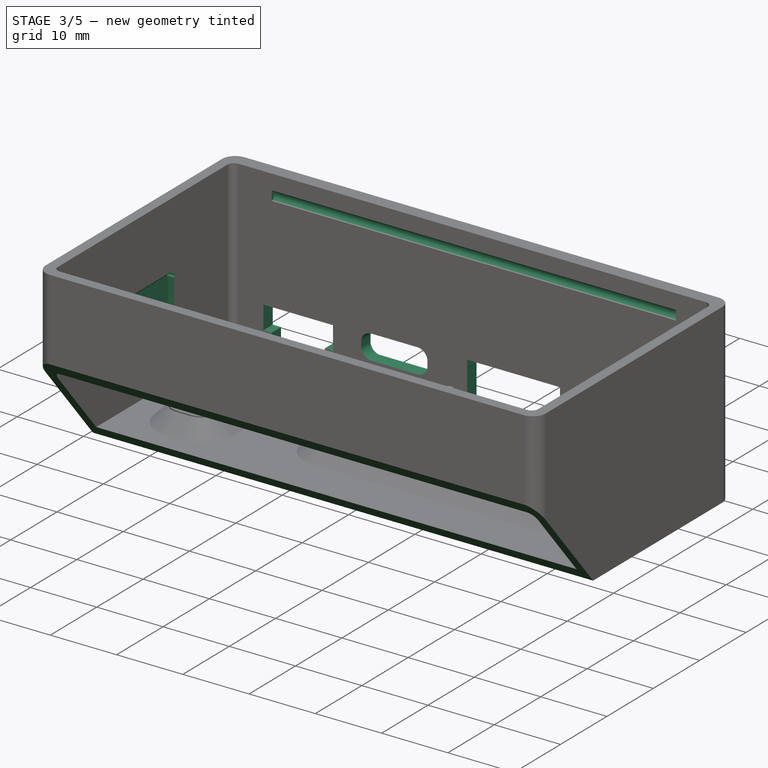
[diagram: stage 3 of 5 — iso view after this stage's code; geometry added in this stage tinted green]
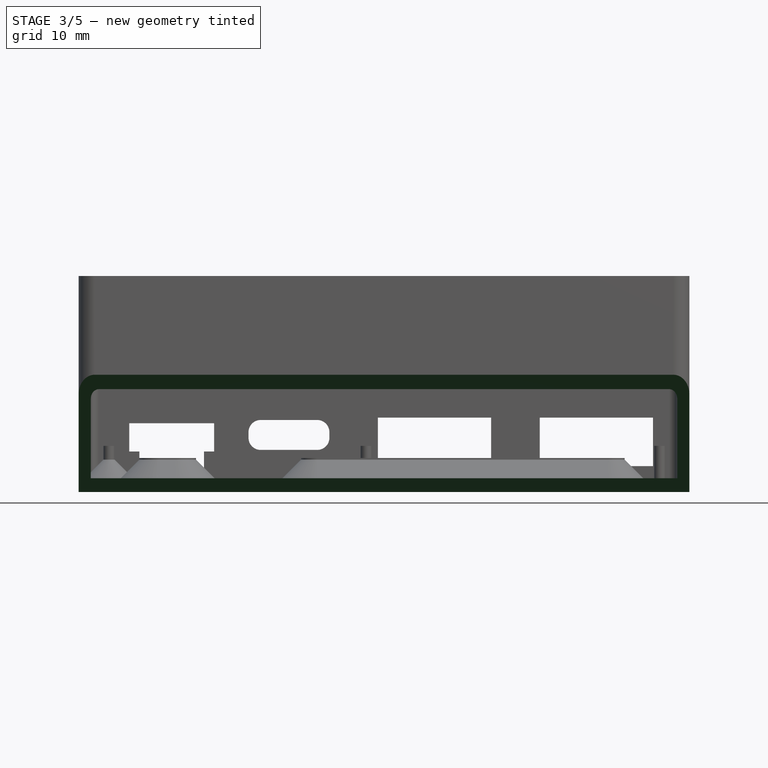
[diagram: stage 3 of 5 — front view after this stage's code; geometry added in this stage tinted green]
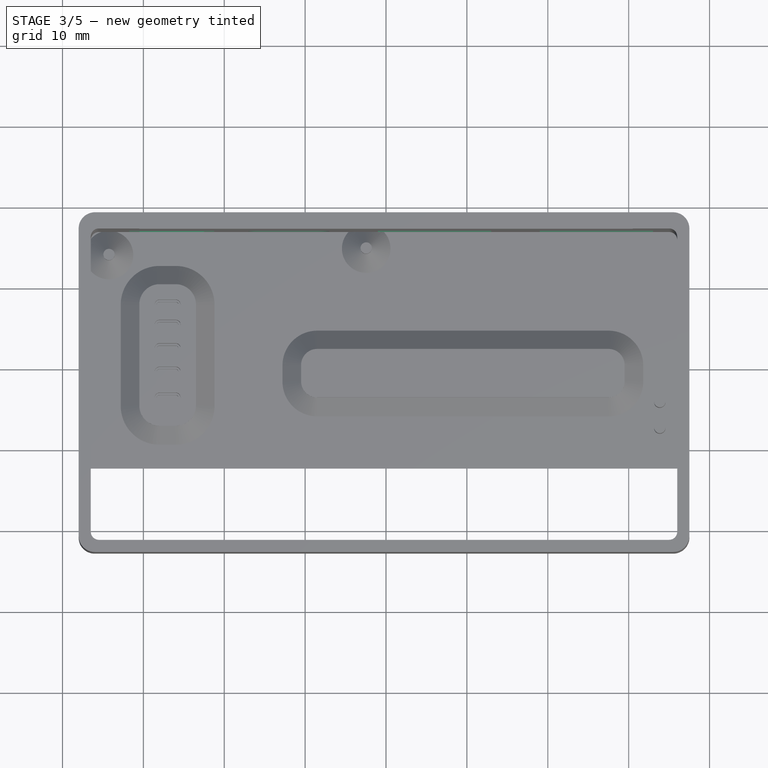
[diagram: stage 3 of 5 — top view after this stage's code; geometry added in this stage tinted green]
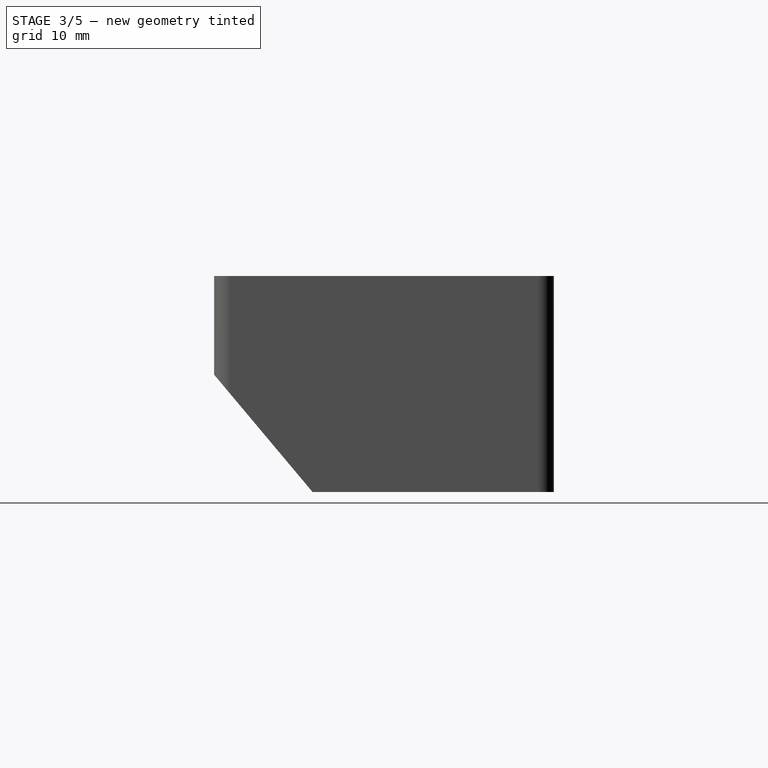
[diagram: stage 3 of 5 — right view after this stage's code; geometry added in this stage tinted green]
FEATURE [Sketcher::SketchObject] Sketch011
  ArcFitTolerance = 1e-06
  AttachmentSupport = -> [Pad010]
  ExternalGeometry = -> [Pad010]
  FullyConstrained = true
  MakeInternals = false
  MapMode = 5
  Placement = pos=(0,9,0) rot=(0,0.707107,0.707107;3.14159rad)
  sketch-geometry (26):
    g0: LineSegment StartX=21.25 StartY=8.3 StartZ=0 EndX=21.25 EndY=4.8 EndZ=0
    g1: LineSegment StartX=21.25 StartY=4.8 StartZ=0 EndX=22.5 EndY=4.8 EndZ=0
    g2: LineSegment StartX=31.75 StartY=4.8 StartZ=0 EndX=31.75 EndY=8.3 EndZ=0
    g3: LineSegment StartX=31.75 StartY=8.3 StartZ=0 EndX=21.25 EndY=8.3 EndZ=0
    g4: LineSegment StartX=22.5 StartY=4.8 StartZ=0 EndX=22.5 EndY=0.8 EndZ=0
    g5: LineSegment StartX=22.5 StartY=0.8 StartZ=0 EndX=30.5 EndY=0.8 EndZ=0
    g6: LineSegment StartX=30.5 StartY=0.8 StartZ=0 EndX=30.5 EndY=4.8 EndZ=0
    g7: LineSegment StartX=30.5 StartY=4.8 StartZ=0 EndX=31.75 EndY=4.8 EndZ=0
    g8: LineSegment StartX=-33 StartY=9 StartZ=0 EndX=-33 EndY=3 EndZ=0
    g9: LineSegment StartX=-33 StartY=3 StartZ=0 EndX=-19 EndY=3 EndZ=0
    g10: LineSegment StartX=-19 StartY=3 StartZ=0 EndX=-19 EndY=9 EndZ=0
    g11: LineSegment StartX=-19 StartY=9 StartZ=0 EndX=-33 EndY=9 EndZ=0
    g12: LineSegment StartX=-13 StartY=9 StartZ=0 EndX=-13 EndY=3 EndZ=0
    g13: LineSegment StartX=-13 StartY=3 StartZ=0 EndX=1 EndY=3 EndZ=0
    g14: LineSegment StartX=1 StartY=3 StartZ=0 EndX=1 EndY=9 EndZ=0
    g15: LineSegment StartX=1 StartY=9 StartZ=0 EndX=-13 EndY=9 EndZ=0
    g16: LineSegment StartX=7 StartY=7.2 StartZ=0 EndX=7 EndY=6.5 EndZ=0
    g17: LineSegment StartX=8.5 StartY=5 StartZ=0 EndX=15.5 EndY=5 EndZ=0
    g18: LineSegment StartX=17 StartY=6.5 StartZ=0 EndX=17 EndY=7.2 EndZ=0
    g19: LineSegment StartX=15.5 StartY=8.7 StartZ=0 EndX=8.5 EndY=8.7 EndZ=0
    g20: ArcOfCircle CenterX=8.5 CenterY=7.2 CenterZ=0 NormalX=0 NormalY=0 NormalZ=1 AngleXU=0 Radius=1.5 StartAngle=1.5708 EndAngle=3.14159
    g21: ArcOfCircle CenterX=8.5 CenterY=6.5 CenterZ=0 NormalX=0 NormalY=0 NormalZ=1 AngleXU=0 Radius=1.5 StartAngle=3.14159 EndAngle=4.71239
    g22: ArcOfCircle CenterX=15.5 CenterY=6.5 CenterZ=0 NormalX=0 NormalY=0 NormalZ=1 AngleXU=0 Radius=1.5 StartAngle=4.71239 EndAngle=6.28319
    g23: ArcOfCircle CenterX=15.5 CenterY=7.2 CenterZ=0 NormalX=0 NormalY=0 NormalZ=1 AngleXU=0 Radius=1.5 StartAngle=1e-16 EndAngle=1.5708
    g24: GeomPoint [constr] X=7 Y=8.7 Z=0
    g25: GeomPoint [constr] X=17 Y=5 Z=0
  constraints (72):
    c: Coincident(g0,g1)
    c: Coincident(g7,g2)
    c: Coincident(g2,g3)
    c: Coincident(g3,g0)
    c: Vertical(g0)
    c: Vertical(g2)
    c: Horizontal(g1)
    c: Horizontal(g3)
    c: Coincident(g4,g5)
    c: Coincident(g5,g6)
    c: Horizontal(g5)
    c: Vertical(g4)
    c: Vertical(g6)
    c: DistanceX(g3,g3) = 10.5
    c: DistanceX(g5,g5) = 8
    c: DistanceY(g0,g0) = 3.5
    c: DistanceY(g4,g0) = 7.5
    c: Horizontal(g1,g6)
    c: Coincident(g1,g4)
    c: Coincident(g6,g7)
    c: Horizontal(g7)
    c: Equal(g1,g7)
    c: Coincident(g8,g9)
    c: Coincident(g9,g10)
    c: Coincident(g10,g11)
    c: Coincident(g11,g8)
    c: Vertical(g8)
    c: Vertical(g10)
    c: Horizontal(g9)
    c: Horizontal(g11)
    c: Coincident(g12,g13)
    c: Coincident(g13,g14)
    c: Coincident(g14,g15)
    c: Coincident(g15,g12)
    c: Vertical(g12)
    c: Vertical(g14)
    c: Horizontal(g13)
    c: Horizontal(g15)
    c: Equal(g11,g15)
    c: Equal(g10,g12)
    c: Horizontal(g10,g12)
    c: DistanceX(g11,g11) = 14
    c: Distance(g8,g8) = 6
    c: Distance(g4,g-1) = 0.8
    c: Distance(g9,g-1) = 3
    c: Tangent(g16,g20) = -1.5708
    c: Tangent(g16,g21) = -1.5708
    c: Tangent(g17,g21) = -1.5708
    c: Tangent(g17,g22) = -1.5708
    c: Tangent(g18,g22) = -1.5708
    c: Tangent(g18,g23) = -1.5708
    c: Tangent(g19,g23) = -1.5708
    c: Tangent(g19,g20) = -1.5708
    c: Vertical(g16)
    c: Vertical(g18)
    c: Horizontal(g17)
    c: Horizontal(g19)
    c: Equal(g20,g21)
    c: Equal(g21,g22)
    c: Equal(g22,g23)
    c: PointOnObject(g24,g16)
    c: PointOnObject(g24,g19)
    c: PointOnObject(g25,g17)
    c: PointOnObject(g25,g18)
    c: Distance(g17,g19) = 3.7
    c: Distance(g18,g16) = 10
    c: Radius(g20) = 1.5
    c: Distance(g-1,g17) = 5
    c: Distance(g2,g-4) = 4.75
    c: Distance(g8,g-4) = 69.5
    c: Distance(g12,g-4) = 49.5
    c: Distance(g16,g-4) = 29.5
FEATURE [PartDesign::Pocket] Pocket  label="PocketUSBs"
  BaseFeature = -> Pad010
  Direction = (0,-1,2e-16)
  Length = 5
  Length2 = 5
  Profile = -> Sketch011
  ReferenceAxis = -> Sketch011 [N_Axis]
  Refine = true
  Suppressed = false
  Type = 2
FEATURE [Sketcher::SketchObject] Sketch012
  ArcFitTolerance = 1e-06
  AttachmentSupport = -> [Pocket]
  FullyConstrained = true
  MakeInternals = false
  MapMode = 5
  Placement = pos=(-38,0,0) rot=(0.57735,-0.57735,-0.57735;2.0944rad)
  sketch-geometry (17):
    g0: LineSegment StartX=5.5 StartY=15.5 StartZ=0 EndX=5.5 EndY=5.5 EndZ=0
    g1: ArcOfCircle CenterX=5.75 CenterY=5.5 CenterZ=0 NormalX=0 NormalY=0 NormalZ=1 AngleXU=0 Radius=0.25 StartAngle=3.14159 EndAngle=4.71236
    g2: LineSegment StartX=5.74999 StartY=5.25 StartZ=0 EndX=15.75 EndY=5.25 EndZ=0
    g3: ArcOfCircle CenterX=15.75 CenterY=5.5 CenterZ=0 NormalX=0 NormalY=0 NormalZ=1 AngleXU=0 Radius=0.25 StartAngle=4.71239 EndAngle=6.28319
    g4: LineSegment StartX=16 StartY=5.5 StartZ=0 EndX=16 EndY=15.5 EndZ=0
    g5: ArcOfCircle CenterX=5.625 CenterY=15.7727 CenterZ=0 NormalX=0 NormalY=0 NormalZ=1 AngleXU=0 Radius=0.3 StartAngle=5.14216 EndAngle=10.5658
    g6: ArcOfCircle CenterX=15.875 CenterY=15.7727 CenterZ=0 NormalX=0 NormalY=0 NormalZ=1 AngleXU=0 Radius=0.3 StartAngle=5.14216 EndAngle=10.5658
    g7: LineSegment [constr] StartX=5.75 StartY=5.5 StartZ=0 EndX=5.75 EndY=5.25 EndZ=0
    g8: LineSegment [constr] StartX=5.75 StartY=5.5 StartZ=0 EndX=5.5 EndY=5.5 EndZ=0
    g9: LineSegment [constr] StartX=15.75 StartY=5.5 StartZ=0 EndX=16 EndY=5.5 EndZ=0
    g10: LineSegment StartX=5.75 StartY=15.5 StartZ=0 EndX=5.75 EndY=5.75 EndZ=0
    g11: LineSegment StartX=6 StartY=5.5 StartZ=0 EndX=15.5 EndY=5.5 EndZ=0
    g12: LineSegment StartX=15.75 StartY=5.75 StartZ=0 EndX=15.75 EndY=15.5 EndZ=0
    g13: ArcOfCircle CenterX=6 CenterY=5.75 CenterZ=0 NormalX=0 NormalY=0 NormalZ=1 AngleXU=0 Radius=0.25 StartAngle=3.14159 EndAngle=4.71239
    g14: GeomPoint [constr] X=5.75 Y=5.5 Z=0
    g15: ArcOfCircle CenterX=15.5 CenterY=5.75 CenterZ=0 NormalX=0 NormalY=0 NormalZ=1 AngleXU=0 Radius=0.25 StartAngle=4.71239 EndAngle=6.28319
    g16: GeomPoint [constr] X=15.75 Y=5.5 Z=0
  constraints (47):
    c: Vertical(g0)
    c: Tangent(g0,g1) = -1.5708
    c: Coincident(g1,g2)
    c: Horizontal(g2)
    c: Tangent(g2,g3) = -1.5708
    c: Coincident(g3,g4)
    c: Vertical(g4)
    c: Equal(g4,g0)
    c: Equal(g1,g3)
    c: Coincident(g5,g0)
    c: Coincident(g6,g4)
    c: Equal(g6,g5)
    c: Horizontal(g0,g5)
    c: Horizontal(g5,g6)
    c: Horizontal(g6,g4)
    c: Horizontal(g6,g5)
    c: PointOnObject(g7,g2)
    c: Vertical(g7)
    c: PointOnObject(g8,g0)
    c: Horizontal(g8)
    c: PointOnObject(g9,g4)
    c: Horizontal(g9)
    c: Equal(g9,g7)
    c: Radius(g5) = 0.3
    c: Distance(g8,g8) = 0.25
    c: DistanceX(g2,g2) = 10
    c: Coincident(g10,g5)
    c: Coincident(g14,g1)
    c: Vertical(g10)
    c: Coincident(g16,g3)
    c: Coincident(g12,g6)
    c: Coincident(g7,g1)
    c: Coincident(g8,g1)
    c: Coincident(g9,g3)
    c: DistanceX(g-1,g8) = 5.5
    c: DistanceY(g-1,g1) = 5.5
    c: DistanceY(g0,g0) = 10
    c: PointOnObject(g14,g11)
    c: PointOnObject(g14,g10)
    c: Tangent(g11,g13) = -1.5708
    c: Tangent(g10,g13) = -1.5708
    c: PointOnObject(g16,g11)
    c: PointOnObject(g16,g12)
    c: Tangent(g11,g15) = -1.5708
    c: Tangent(g12,g15) = -1.5708
    c: Equal(g13,g15)
    c: Equal(g15,g3)
FEATURE [PartDesign::Pocket] Pocket001  label="PocketButton"
  BaseFeature = -> Pocket
  Direction = (1,0,0)
  Length = 5
  Length2 = 5
  Profile = -> Sketch012
  ReferenceAxis = -> Sketch012 [N_Axis]
  Refine = true
  Suppressed = false
  Type = 2
FEATURE [Sketcher::SketchObject] Sketch013
  ArcFitTolerance = 1e-06
  AttachmentSupport = -> [Pocket001]
  ExternalGeometry = -> [Pocket001]
  FullyConstrained = true
  MakeInternals = false
  MapMode = 5
  Placement = pos=(-36.5,0,0) rot=(0.57735,0.57735,0.57735;2.0944rad)
  sketch-geometry (4):
    g0: LineSegment StartX=-15.75 StartY=8.5 StartZ=0 EndX=-5.75 EndY=8.5 EndZ=0
    g1: LineSegment StartX=-5.75 StartY=8.5 StartZ=0 EndX=-5.75 EndY=16.5 EndZ=0
    g2: LineSegment StartX=-5.75 StartY=16.5 StartZ=0 EndX=-15.75 EndY=16.5 EndZ=0
    g3: LineSegment StartX=-15.75 StartY=16.5 StartZ=0 EndX=-15.75 EndY=8.5 EndZ=0
  constraints (12):
    c: Coincident(g0,g1)
    c: Coincident(g1,g2)
    c: Coincident(g2,g3)
    c: Coincident(g3,g0)
    c: Horizontal(g0)
    c: Horizontal(g2)
    c: Vertical(g1)
    c: Vertical(g3)
    c: PointOnObject(g0,g-5)
    c: PointOnObject(g0,g-6)
    c: DistanceY(g0,g-5) = 7
    c: DistanceY(g-5,g2) = 1
FEATURE [PartDesign::Pocket] Pocket002
  BaseFeature = -> Pocket001
  Direction = (-1,0,0)
  Length = 0.75
  Length2 = 5
  Profile = -> Sketch013
  ReferenceAxis = -> Sketch013 [N_Axis]
  Refine = true
  Suppressed = false
  Type = 0
FEATURE [PartDesign::Chamfer] Chamfer001
  Angle = 27
  Base = -> Pocket002 [Edge178,Edge180]
  BaseFeature = -> Pocket002
  ChamferType = 0
  FlipDirection = false
  Refine = true
  Size = 0.7
  Size2 = 0.2
  SupportTransform = false
  Suppressed = false
  UseAllEdges = false
FEATURE [Sketcher::SketchObject] Sketch017
  ArcFitTolerance = 1e-06
  AttachmentSupport = -> [YZ_Plane016]
  ExternalGeometry = -> [Chamfer001]
  FullyConstrained = true
  MakeInternals = false
  MapMode = 5
  Placement = pos=(0,0,0) rot=(0.57735,0.57735,0.57735;2.0944rad)
  sketch-geometry (6):
    g0: LineSegment [constr] StartX=7 StartY=26.5 StartZ=0 EndX=7 EndY=23.5 EndZ=0
    g1: LineSegment [constr] StartX=-31.5 StartY=26.5 StartZ=0 EndX=-31.5 EndY=23.5 EndZ=0
    g2: ArcOfCircle CenterX=6.8 CenterY=23.5 CenterZ=0 NormalX=0 NormalY=0 NormalZ=1 AngleXU=0 Radius=0.75 StartAngle=4.71239 EndAngle=7.85398
    g3: ArcOfCircle CenterX=-31.3 CenterY=23.5 CenterZ=0 NormalX=0 NormalY=0 NormalZ=1 AngleXU=0 Radius=0.75 StartAngle=1.5708 EndAngle=4.71239
    g4: LineSegment StartX=-31.3 StartY=24.25 StartZ=0 EndX=-31.3 EndY=22.75 EndZ=0
    g5: LineSegment StartX=6.8 StartY=24.25 StartZ=0 EndX=6.8 EndY=22.75 EndZ=0
  constraints (20):
    c: Coincident(g0,g-4)
    c: Coincident(g1,g-3)
    c: Vertical(g1)
    c: Vertical(g0)
    c: Equal(g1,g0)
    c: DistanceY(g0,g0) = 3
    c: Radius(g2) = 0.75
    c: Angle(g2) = 3.14159
    c: Vertical(g2,g2)
    c: Horizontal(g2,g0)
    c: DistanceX(g2,g0) = 0.2
    c: Equal(g3,g2)
    c: Vertical(g3,g3)
    c: Vertical(g3,g3)
    c: DistanceX(g1,g3) = 0.2
    c: Horizontal(g1,g3)
    c: Coincident(g4,g3)
    c: Coincident(g4,g3)
    c: Coincident(g5,g2)
    c: Coincident(g5,g2)
FEATURE [PartDesign::Pocket] Pocket003
  BaseFeature = -> Chamfer001
  Direction = (-1,0,0)
  Length = 61
  Length2 = 5
  Midplane = true
  Profile = -> Sketch017
  ReferenceAxis = -> Sketch017 [N_Axis]
  Refine = true
  Suppressed = false
  Type = 0
FEATURE [PartDesign::Body] Body004  label="Bot_lid"
  AllowCompound = false
  Group = -> [Sketch014,Binder002,Binder003,Pad011,Binder004,Sketch015,Pad012,Sketch016,Pad013,Sketch018,Pad014,Chamfer002]
  Origin = -> Origin017
  Tip = -> Chamfer002
FEATURE [Sketcher::SketchObject] Sketch019
  ArcFitTolerance = 1e-06
  AttachmentSupport = -> [Pocket003]
  ExternalGeometry = -> [Pocket003]
  FullyConstrained = true
  MakeInternals = false
  MapMode = 5
  Placement = pos=(-38,0,0) rot=(0.57735,-0.57735,-0.57735;2.0944rad)
  sketch-geometry (3):
    g0: LineSegment StartX=33 StartY=14.3 StartZ=0 EndX=20.8331 EndY=-0.2 EndZ=0
    g1: LineSegment StartX=20.8331 StartY=-0.2 StartZ=0 EndX=33 EndY=-0.2 EndZ=0
    g2: LineSegment StartX=33 StartY=-0.2 StartZ=0 EndX=33 EndY=14.3 EndZ=0
  constraints (8):
    c: PointOnObject(g0,g-4)
    c: Coincident(g1,g0)
    c: Coincident(g1,g-3)
    c: Coincident(g2,g1)
    c: Coincident(g2,g0)
    c: Vertical(g2)
    c: Angle(g1,g0) = 0.872665
    c: DistanceY(g2,g2) = 14.5
FEATURE [PartDesign::Pocket] Pocket004
  BaseFeature = -> Pocket003
  Direction = (1,0,0)
  Length = 5
  Length2 = 5
  Profile = -> Sketch019
  ReferenceAxis = -> Sketch019 [N_Axis]
  Refine = true
  Suppressed = false
  Type = 1
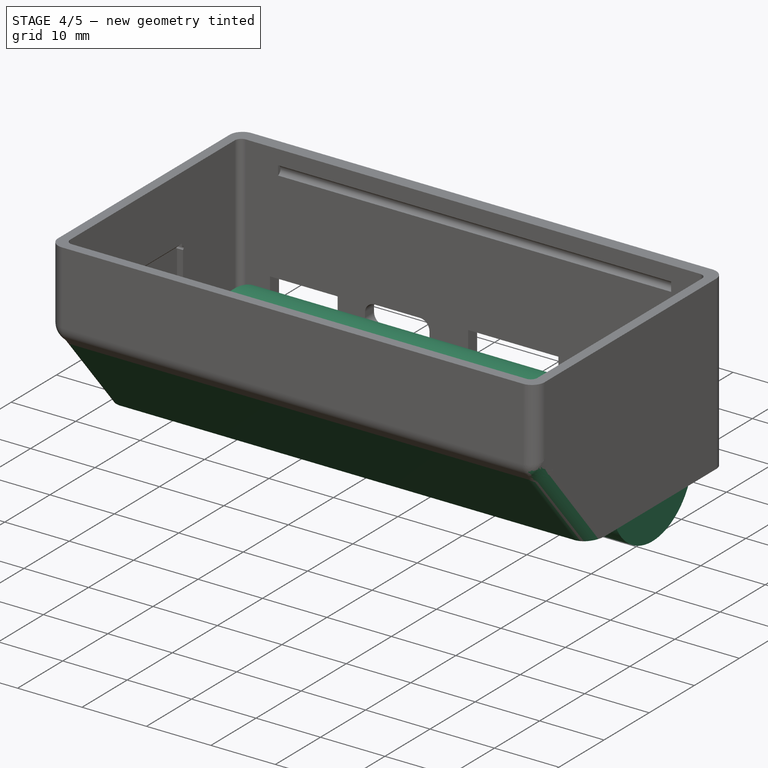
[diagram: stage 4 of 5 — iso view after this stage's code; geometry added in this stage tinted green]
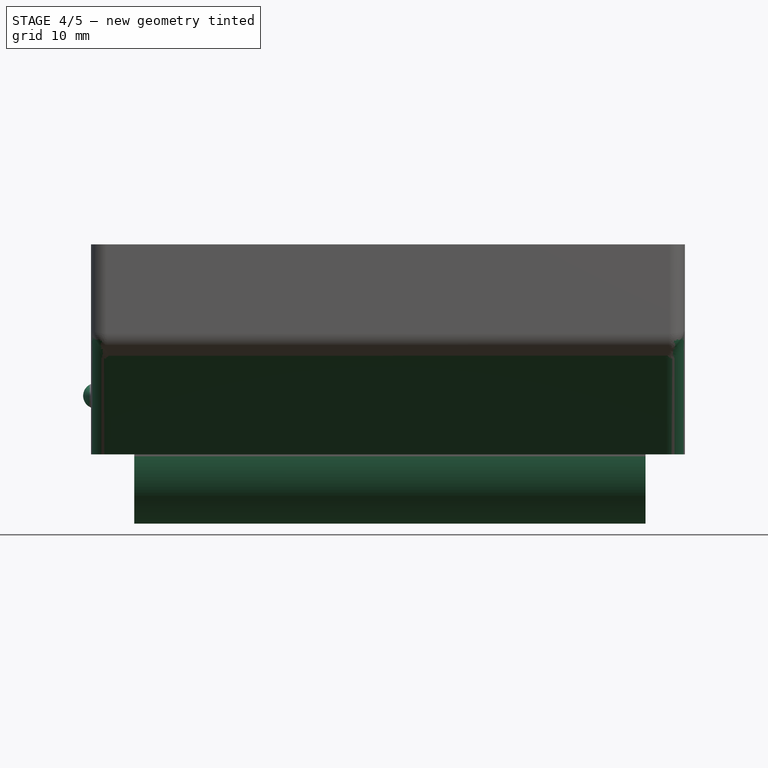
[diagram: stage 4 of 5 — front view after this stage's code; geometry added in this stage tinted green]
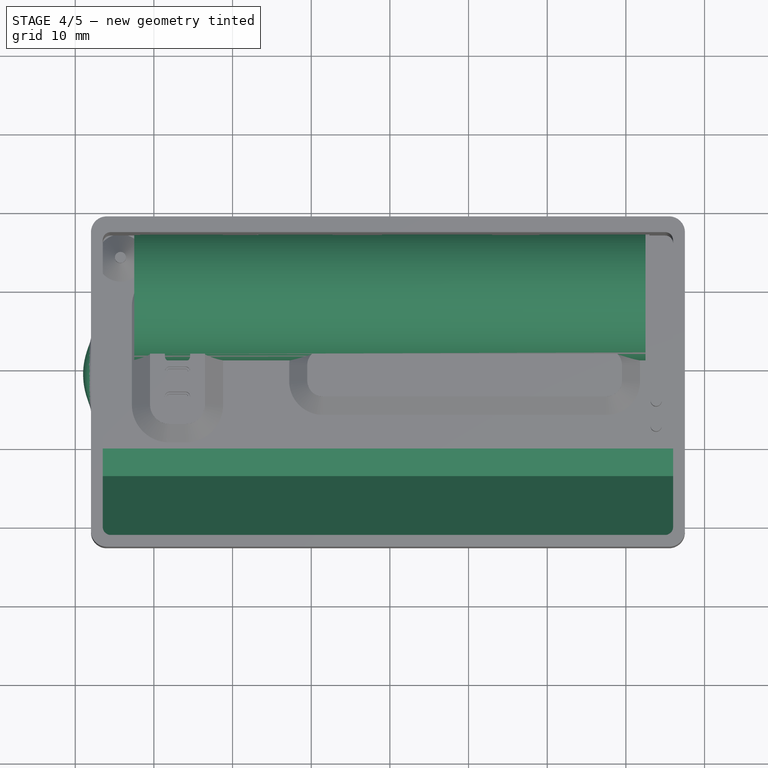
[diagram: stage 4 of 5 — top view after this stage's code; geometry added in this stage tinted green]
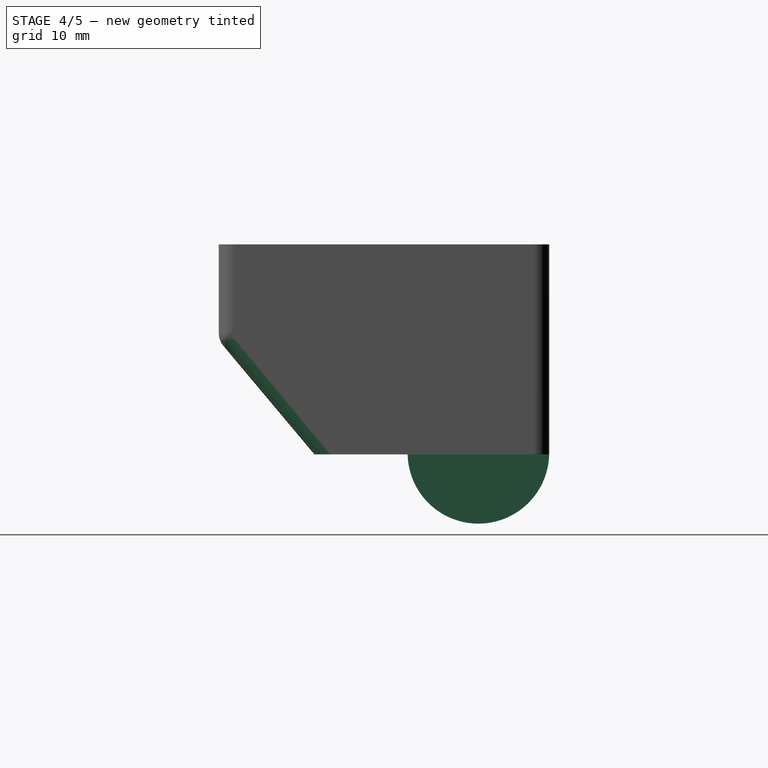
[diagram: stage 4 of 5 — right view after this stage's code; geometry added in this stage tinted green]
FEATURE [Part::Feature] Part__Feature016  label="USB_C_Receptacle_16P_TopMnt_Horizontal_GCT_USB4105-xx-A"
  shape: bbox 0.25 x 2.4 x 0.1 mm, 6 faces (baked)
FEATURE [Part::Feature] Part__Feature017  label="USB_C_Receptacle_16P_TopMnt_Horizontal_GCT_USB4105-xx-A001"
  shape: bbox 0.25 x 2.4 x 0.1 mm, 6 faces (baked)
FEATURE [Part::Feature] Part__Feature018  label="USB_C_Receptacle_16P_TopMnt_Horizontal_GCT_USB4105-xx-A002"
  shape: bbox 0.25 x 1.9 x 0.1 mm, 6 faces (baked)
FEATURE [Part::Feature] Part__Feature019  label="USB_C_Receptacle_16P_TopMnt_Horizontal_GCT_USB4105-xx-A003"
  shape: bbox 0.25 x 1.9 x 0.1 mm, 6 faces (baked)
FEATURE [Part::Feature] Part__Feature020  label="USB_C_Receptacle_16P_TopMnt_Horizontal_GCT_USB4105-xx-A004"
  shape: bbox 0.25 x 2.4 x 0.1 mm, 6 faces (baked)
FEATURE [Part::Feature] Part__Feature021  label="USB_C_Receptacle_16P_TopMnt_Horizontal_GCT_USB4105-xx-A005"
  shape: bbox 0.25 x 2.4 x 0.1 mm, 6 faces (baked)
FEATURE [Part::Feature] Part__Feature022  label="USB_C_Receptacle_16P_TopMnt_Horizontal_GCT_USB4105-xx-A006"
  shape: bbox 0.25 x 1.9 x 0.1 mm, 6 faces (baked)
FEATURE [Part::Feature] Part__Feature023  label="USB_C_Receptacle_16P_TopMnt_Horizontal_GCT_USB4105-xx-A007"
  shape: bbox 0.25 x 1.9 x 0.1 mm, 6 faces (baked)
FEATURE [Part::Feature] Part__Feature024  label="USB_C_Receptacle_16P_TopMnt_Horizontal_GCT_USB4105-xx-A008"
  shape: bbox 4.45 x 7.05 x 3.59 mm, 66 faces (baked)
FEATURE [Part::Feature] Part__Feature025  label="USB_C_Receptacle_16P_TopMnt_Horizontal_GCT_USB4105-xx-A009"
  shape: bbox 0.2 x 0.8 x 0.12 mm, 6 faces (baked)
FEATURE [Part::Feature] Part__Feature026  label="USB_C_Receptacle_16P_TopMnt_Horizontal_GCT_USB4105-xx-A010"
  shape: bbox 0.2 x 0.8 x 0.12 mm, 6 faces (baked)
FEATURE [Part::Feature] Part__Feature027  label="USB_C_Receptacle_16P_TopMnt_Horizontal_GCT_USB4105-xx-A011"
  shape: bbox 0.2 x 0.8 x 0.12 mm, 6 faces (baked)
FEATURE [Part::Feature] Part__Feature028  label="USB_C_Receptacle_16P_TopMnt_Horizontal_GCT_USB4105-xx-A012"
  shape: bbox 0.2 x 0.8 x 0.12 mm, 6 faces (baked)
FEATURE [Part::Feature] Part__Feature029  label="USB_C_Receptacle_16P_TopMnt_Horizontal_GCT_USB4105-xx-A013"
  shape: bbox 0.2 x 0.8 x 0.12 mm, 6 faces (baked)
FEATURE [Part::Feature] Part__Feature030  label="USB_C_Receptacle_16P_TopMnt_Horizontal_GCT_USB4105-xx-A014"
  shape: bbox 0.2 x 0.8 x 0.12 mm, 6 faces (baked)
FEATURE [Part::Feature] Part__Feature031  label="USB_C_Receptacle_16P_TopMnt_Horizontal_GCT_USB4105-xx-A015"
  shape: bbox 0.2 x 0.8 x 0.12 mm, 6 faces (baked)
FEATURE [Part::Feature] Part__Feature032  label="USB_C_Receptacle_16P_TopMnt_Horizontal_GCT_USB4105-xx-A016"
  shape: bbox 0.2 x 0.8 x 0.12 mm, 6 faces (baked)
FEATURE [Part::Feature] Part__Feature033  label="USB_C_Receptacle_16P_TopMnt_Horizontal_GCT_USB4105-xx-A017"
  shape: bbox 4.47 x 7.33 x 4.26 mm, 161 faces (baked)
FEATURE [Part::Feature] Part__Feature034  label="USB_C_Receptacle_16P_TopMnt_Horizontal_GCT_USB4105-xx-A018"
  shape: bbox 0.25 x 2.4 x 0.1 mm, 6 faces (baked)
FEATURE [Part::Feature] Part__Feature035  label="USB_C_Receptacle_16P_TopMnt_Horizontal_GCT_USB4105-xx-A019"
  shape: bbox 0.25 x 2.4 x 0.1 mm, 6 faces (baked)
FEATURE [Part::Feature] Part__Feature036  label="USB_C_Receptacle_16P_TopMnt_Horizontal_GCT_USB4105-xx-A020"
  shape: bbox 0.25 x 1.9 x 0.1 mm, 6 faces (baked)
FEATURE [Part::Feature] Part__Feature037  label="USB_C_Receptacle_16P_TopMnt_Horizontal_GCT_USB4105-xx-A021"
  shape: bbox 0.25 x 1.9 x 0.1 mm, 6 faces (baked)
FEATURE [Part::Feature] Part__Feature038  label="USB_C_Receptacle_16P_TopMnt_Horizontal_GCT_USB4105-xx-A022"
  shape: bbox 0.25 x 2.4 x 0.1 mm, 6 faces (baked)
FEATURE [Part::Feature] Part__Feature039  label="USB_C_Receptacle_16P_TopMnt_Horizontal_GCT_USB4105-xx-A023"
  shape: bbox 0.25 x 2.4 x 0.1 mm, 6 faces (baked)
FEATURE [Part::Feature] Part__Feature040  label="USB_C_Receptacle_16P_TopMnt_Horizontal_GCT_USB4105-xx-A024"
  shape: bbox 0.25 x 1.9 x 0.1 mm, 6 faces (baked)
FEATURE [Part::Feature] Part__Feature041  label="USB_C_Receptacle_16P_TopMnt_Horizontal_GCT_USB4105-xx-A025"
  shape: bbox 0.25 x 1.9 x 0.1 mm, 6 faces (baked)
FEATURE [Part::Feature] Part__Feature042  label="USB_C_Receptacle_16P_TopMnt_Horizontal_GCT_USB4105-xx-A026"
  shape: bbox 4.45 x 7.05 x 3.59 mm, 66 faces (baked)
FEATURE [Part::Feature] Part__Feature043  label="USB_C_Receptacle_16P_TopMnt_Horizontal_GCT_USB4105-xx-A027"
  shape: bbox 0.2 x 0.8 x 0.12 mm, 6 faces (baked)
FEATURE [Part::Feature] Part__Feature044  label="USB_C_Receptacle_16P_TopMnt_Horizontal_GCT_USB4105-xx-A028"
  shape: bbox 0.2 x 0.8 x 0.12 mm, 6 faces (baked)
FEATURE [Part::Feature] Part__Feature045  label="USB_C_Receptacle_16P_TopMnt_Horizontal_GCT_USB4105-xx-A029"
  shape: bbox 0.2 x 0.8 x 0.12 mm, 6 faces (baked)
FEATURE [Part::Feature] Part__Feature046  label="USB_C_Receptacle_16P_TopMnt_Horizontal_GCT_USB4105-xx-A030"
  shape: bbox 0.2 x 0.8 x 0.12 mm, 6 faces (baked)
FEATURE [Part::Feature] Part__Feature047  label="USB_C_Receptacle_16P_TopMnt_Horizontal_GCT_USB4105-xx-A031"
  shape: bbox 0.2 x 0.8 x 0.12 mm, 6 faces (baked)
FEATURE [Part::Feature] Part__Feature048  label="USB_C_Receptacle_16P_TopMnt_Horizontal_GCT_USB4105-xx-A032"
  shape: bbox 0.2 x 0.8 x 0.12 mm, 6 faces (baked)
FEATURE [Part::Feature] Part__Feature049  label="USB_C_Receptacle_16P_TopMnt_Horizontal_GCT_USB4105-xx-A033"
  shape: bbox 0.2 x 0.8 x 0.12 mm, 6 faces (baked)
FEATURE [Part::Feature] Part__Feature050  label="USB_C_Receptacle_16P_TopMnt_Horizontal_GCT_USB4105-xx-A034"
  shape: bbox 0.2 x 0.8 x 0.12 mm, 6 faces (baked)
FEATURE [Part::Feature] Part__Feature051  label="USB_C_Receptacle_16P_TopMnt_Horizontal_GCT_USB4105-xx-A035"
  shape: bbox 4.47 x 7.33 x 4.26 mm, 161 faces (baked)
FEATURE [App::Part] USB_C_Receptacle_16P_TopMnt_Horizontal_GCT_USB4105_xx_A  label="USBC"
  Group = -> [Part__Feature016,Part__Feature017,Part__Feature018,Part__Feature019,Part__Feature020,Part__Feature021,Part__Feature022,Part__Feature023,Part__Feature024,Part__Feature025,Part__Feature026,Part__Feature027,Part__Feature028,Part__Feature029,Part__Feature030,Part__Feature031,Part__Feature032,Part__Feature033,Part__Feature034,Part__Feature035,Part__Feature036,Part__Feature037,Part__Feature038,+13 more]
  Origin = -> Origin010
  Placement = pos=(-11.7,11.4,0) rot=(0,0,1;3.14159rad)
FEATURE [Part::Feature] Part__Feature052  label="USB_Micro-B"
  Placement = pos=(-26,12,-1) rot=(1,0,0;3.14159rad)
  shape: bbox 7.977 x 5.418 x 2.937 mm, 484 faces (baked)
FEATURE [Part::Feature] Part__Feature053  label="USB1015-GF-L-A_PART1"
  Placement = pos=(0,0,0) rot=(1,0,0;3.14159rad)
  shape: bbox 12.41 x 5.926 x 13.51 mm, 189 faces (baked)
FEATURE [Part::Feature] Part__Feature054  label="USB1015-GF-L-A_PART2"
  Placement = pos=(0,0,0) rot=(1,0,0;3.14159rad)
  shape: bbox 17.1 x 6.853 x 14 mm, 438 faces (baked)
FEATURE [Part::Feature] Part__Feature055  label="USB1015-GF-L-A_PART3"
  Placement = pos=(0,0,0) rot=(1,0,0;3.14159rad)
  shape: bbox 1.741 x 4.637 x 11.43 mm, 64 faces (baked)
FEATURE [Part::Feature] Part__Feature056  label="USB1015-GF-L-A_PART004"
  Placement = pos=(2.5,0,0) rot=(1,0,0;3.14159rad)
  shape: bbox 1.741 x 4.637 x 11.43 mm, 64 faces (baked)
FEATURE [Part::Feature] Part__Feature057  label="USB1015-GF-L-A_PART005"
  Placement = pos=(4.5,0,0) rot=(1,0,0;3.14159rad)
  shape: bbox 1.741 x 4.637 x 11.43 mm, 64 faces (baked)
FEATURE [Part::Feature] Part__Feature058  label="USB1015-GF-L-A_PART006"
  Placement = pos=(7,0,0) rot=(1,0,0;3.14159rad)
  shape: bbox 1.741 x 4.637 x 11.43 mm, 64 faces (baked)
FEATURE [App::Part] USB1015_GF_L_A  label="USBA-2"
  Group = -> [Part__Feature053,Part__Feature054,Part__Feature055,Part__Feature056,Part__Feature057,Part__Feature058]
  Origin = -> Origin011
  Placement = pos=(15,-3.8e-15,4) rot=(0,0.707107,0.707107;3.14159rad)
FEATURE [Part::Feature] Part__Feature059  label="USB1015-GF-L-A_PART007"
  Placement = pos=(0,0,0) rot=(1,0,0;3.14159rad)
  shape: bbox 12.41 x 5.926 x 13.51 mm, 189 faces (baked)
FEATURE [Part::Feature] Part__Feature060  label="USB1015-GF-L-A_PART008"
  Placement = pos=(0,0,0) rot=(1,0,0;3.14159rad)
  shape: bbox 17.1 x 6.853 x 14 mm, 438 faces (baked)
FEATURE [Part::Feature] Part__Feature061  label="USB1015-GF-L-A_PART009"
  Placement = pos=(0,0,0) rot=(1,0,0;3.14159rad)
  shape: bbox 1.741 x 4.637 x 11.43 mm, 64 faces (baked)
FEATURE [Part::Feature] Part__Feature062  label="USB1015-GF-L-A_PART010"
  Placement = pos=(2.5,0,0) rot=(1,0,0;3.14159rad)
  shape: bbox 1.741 x 4.637 x 11.43 mm, 64 faces (baked)
FEATURE [Part::Feature] Part__Feature063  label="USB1015-GF-L-A_PART011"
  Placement = pos=(4.5,0,0) rot=(1,0,0;3.14159rad)
  shape: bbox 1.741 x 4.637 x 11.43 mm, 64 faces (baked)
FEATURE [Part::Feature] Part__Feature064  label="USB1015-GF-L-A_PART012"
  Placement = pos=(7,0,0) rot=(1,0,0;3.14159rad)
  shape: bbox 1.741 x 4.637 x 11.43 mm, 64 faces (baked)
FEATURE [App::Part] USB1015_GF_L_A001  label="USBA-1"
  Group = -> [Part__Feature059,Part__Feature060,Part__Feature061,Part__Feature062,Part__Feature063,Part__Feature064]
  Origin = -> Origin012
  Placement = pos=(35.5,-5.6e-15,4) rot=(0,0.707107,0.707107;3.14159rad)
FEATURE [Sketcher::SketchObject] Sketch003
  ArcFitTolerance = 1e-06
  AttachmentSupport = -> [YZ_Plane014]
  FullyConstrained = true
  MakeInternals = false
  MapMode = 5
  Placement = pos=(0,0,0) rot=(0.57735,0.57735,0.57735;2.0944rad)
  sketch-geometry (1):
    g0: Circle CenterX=0 CenterY=0 CenterZ=0 NormalX=0 NormalY=0 NormalZ=1 AngleXU=0 Radius=9
  constraints (2):
    c: Diameter(g0) = 18
    c: Coincident(g0,g-1)
FEATURE [PartDesign::Pad] Pad003
  Direction = (1,0,0)
  Length = 65
  Length2 = 10
  Midplane = true
  Placement = pos=(0,0,0) rot=(1,1,1;2.0944rad)
  Profile = -> Sketch003
  ReferenceAxis = -> Sketch003 [N_Axis]
  Refine = true
  Suppressed = false
  Type = 0
FEATURE [PartDesign::SubShapeBinder] Binder005
  BindCopyOnChange = 0
  BindMode = 0
  ClaimChildren = false
  Context = -> Part002 [Body003.Binder005.]
  Fuse = false
  MakeFace = true
  OffsetFill = false
  OffsetIntersection = false
  OffsetJoinType = 0
  OffsetOpenResult = false
  PartialLoad = false
  Refine = true
  Relative = true
  Support = -> [Pocket004[Face21]]
  _Version = 2
FEATURE [Sketcher::SketchObject] Sketch020
  ArcFitTolerance = 1e-06
  AttachmentSupport = -> [Binder005]
  ExternalGeometry = -> [Binder005]
  FullyConstrained = false
  MakeInternals = false
  MapMode = 5
  Placement = pos=(0,-12.3238,-10.3409) rot=(1,0,0;2.26893rad)
  sketch-geometry (14):
    g0: LineSegment StartX=-38 StartY=29.055 StartZ=0 EndX=-38 EndY=13.238 EndZ=0
    g1: LineSegment StartX=-38 StartY=13.238 StartZ=0 EndX=37.5 EndY=13.238 EndZ=0
    g2: LineSegment StartX=37.5 StartY=13.238 StartZ=0 EndX=37.5 EndY=29.055 EndZ=0
    g3: LineSegment StartX=35.5 StartY=32.1664 StartZ=0 EndX=-36 EndY=32.1664 EndZ=0
    g4: ArcOfEllipse CenterX=35.5 CenterY=29.055 CenterZ=0 NormalX=0 NormalY=0 NormalZ=1 MajorRadius=3.11145 MinorRadius=2 AngleXU=-1.57082 StartAngle=1.57081 EndAngle=3.14163
    g5: LineSegment [constr] StartX=35.4999 StartY=25.9435 StartZ=0 EndX=35.5001 EndY=32.1664 EndZ=0
    g6: LineSegment [constr] StartX=37.5 StartY=29.0549 StartZ=0 EndX=33.5 EndY=29.055 EndZ=0
    g7: GeomPoint [constr] X=35.4999 Y=26.6715 Z=0
    g8: GeomPoint [constr] X=35.5001 Y=31.4385 Z=0
    g9: ArcOfEllipse CenterX=-36 CenterY=29.055 CenterZ=0 NormalX=0 NormalY=0 NormalZ=1 MajorRadius=3.11145 MinorRadius=2 AngleXU=1.57017 StartAngle=0.000980377 EndAngle=1.5712
    g10: LineSegment [constr] StartX=-35.998 StartY=32.1664 StartZ=0 EndX=-36.002 EndY=25.9435 EndZ=0
    g11: LineSegment [constr] StartX=-38 StartY=29.0562 StartZ=0 EndX=-34 EndY=29.0537 EndZ=0
    g12: GeomPoint [constr] X=-35.9985 Y=31.4385 Z=0
    g13: GeomPoint [constr] X=-36.0015 Y=26.6715 Z=0
  constraints (16):
    c: Coincident(g0,g-8)
    c: Coincident(g0,g-3)
    c: Coincident(g0,g1)
    c: Coincident(g1,g-4)
    c: Coincident(g1,g2)
    c: Coincident(g2,g-5)
    c: Coincident(g3,g-6)
    c: Coincident(g3,g-7)
    c: InternalAlignment(g5-g8 -> g4) x4
    c: Coincident(g4,g-9)
    c: Coincident(g4,g3)
    c: Coincident(g4,g2)
    c: InternalAlignment(g10-g13 -> g9) x4
    c: Coincident(g9,g-10)
    c: Coincident(g9,g3)
    c: Coincident(g9,g0)
FEATURE [PartDesign::Pad] Pad015
  BaseFeature = -> Pocket004
  Direction = (0,-0.766044,-0.642788)
  Length = 1.5
  Length2 = 10
  Profile = -> Sketch020
  ReferenceAxis = -> Sketch020 [N_Axis]
  Refine = true
  Reversed = true
  Suppressed = false
  Type = 0
FEATURE [Sketcher::SketchObject] Sketch021
  ArcFitTolerance = 1e-06
  AttachmentSupport = -> [Pad015]
  ExternalGeometry = -> [Binder,Pad015]
  FullyConstrained = true
  MakeInternals = false
  MapMode = 5
  Placement = pos=(-36.5,0,0) rot=(0.57735,0.57735,0.57735;2.0944rad)
  sketch-geometry (4):
    g0: LineSegment StartX=-20.15 StartY=1.5 StartZ=0 EndX=-20.15 EndY=5.5 EndZ=0
    g1: LineSegment StartX=-20.15 StartY=5.5 StartZ=0 EndX=-23.6578 EndY=5.5 EndZ=0
    g2: LineSegment StartX=-23.6578 StartY=5.5 StartZ=0 EndX=-20.3014 EndY=1.5 EndZ=0
    g3: LineSegment StartX=-20.3014 StartY=1.5 StartZ=0 EndX=-20.15 EndY=1.5 EndZ=0
  constraints (11):
    c: PointOnObject(g0,g-4)
    c: Vertical(g0)
    c: Coincident(g0,g1)
    c: PointOnObject(g1,g-5)
    c: Horizontal(g1)
    c: Coincident(g1,g2)
    c: Coincident(g2,g-5)
    c: Coincident(g2,g3)
    c: Coincident(g3,g0)
    c: DistanceY(g-3,g0) = 1.5
    c: Distance(g-3,g0) = 0.15
FEATURE [PartDesign::Pad] Pad016
  BaseFeature = -> Pad015
  Direction = (1,0,0)
  Length = 10
  Length2 = 10
  Profile = -> Sketch021
  ReferenceAxis = -> Sketch021 [N_Axis]
  Refine = true
  Suppressed = false
  Type = 2
FEATURE [PartDesign::Fillet] Fillet
  Base = -> Pad016 [Edge57]
  BaseFeature = -> Pad016
  Radius = 2.5
  Refine = true
  SupportTransform = false
  Suppressed = false
  UseAllEdges = false
FEATURE [Sketcher::SketchObject] Sketch022
  ArcFitTolerance = 1e-06
  AttachmentSupport = -> [Fillet]
  ExternalGeometry = -> [Fillet]
  FullyConstrained = true
  MakeInternals = false
  MapMode = 5
  Placement = pos=(-38,0,0) rot=(0.57735,-0.57735,-0.57735;2.0944rad)
  sketch-geometry (4):
    g0: LineSegment StartX=6 StartY=7.25 StartZ=0 EndX=15.5 EndY=7.25 EndZ=0
    g1: GeomPoint X=10.75 Y=7.25 Z=0
    g2: GeomPoint X=10.75 Y=5.5 Z=0
    g3: ArcOfCircle CenterX=10.75 CenterY=14.0208 CenterZ=0 NormalX=0 NormalY=0 NormalZ=1 AngleXU=0 Radius=8.27083 StartAngle=4.10063 EndAngle=5.32415
  constraints (9):
    c: Distance(g0) = 9.5
    c: Horizontal(g0)
    c: Symmetric(g0,g0,g1)
    c: Symmetric(g-3,g-3,g2)
    c: Vertical(g2,g1)
    c: Distance(g-3,g0) = 1.75
    c: Coincident(g3,g0)
    c: Coincident(g3,g0)
    c: Distance(g1,g3) = 1.5
FEATURE [Sketcher::SketchObject] Sketch023
  ArcFitTolerance = 1e-06
  AttachmentSupport = -> [Fillet]
  ExternalGeometry = -> [Sketch022]
  FullyConstrained = true
  MakeInternals = false
  MapMode = 5
  Placement = pos=(0,9,0) rot=(0,0.707107,0.707107;3.14159rad)
  sketch-geometry (2):
    g0: GeomPoint [constr] X=38 Y=8.75 Z=0
    g1: ArcOfCircle CenterX=37.375 CenterY=7.25 CenterZ=0 NormalX=0 NormalY=0 NormalZ=1 AngleXU=0 Radius=1.625 StartAngle=5.10718 EndAngle=7.45919
  constraints (4):
    c: Symmetric(g0,g-4,g-4)
    c: Coincident(g1,g-4)
    c: Coincident(g1,g0)
    c: Distance(g-4,g1) = 1
FEATURE [PartDesign::AdditivePipe] AdditivePipe
  AuxilleryCurvelinear = true
  AuxillerySpineTangent = false
  BaseFeature = -> Fillet
  Binormal = (0,0,0)
  Mode = 0
  Profile = -> Sketch022
  Refine = true
  Spine = -> Sketch023
  SpineTangent = false
  Suppressed = false
  Transformation = 0
  Transition = 0
FEATURE [PartDesign::Body] Body003  label="Top_lid"
  AllowCompound = false
  Group = -> [Binder,Sketch004,Pad004,Sketch005,Pad005,Sketch007,Binder001,Pad007,Sketch008,Pad008,Sketch009,Pad009,Chamfer,Sketch010,Pad010,Sketch011,Pocket,Sketch012,Pocket001,Sketch013,Pocket002,Chamfer001,Sketch017,Pocket003,Sketch019,Pocket004,Binder005,Sketch020,Pad015,Sketch021,Pad016,Fillet,Sketch022,Sketch023,AdditivePipe]
  Origin = -> Origin016
  Tip = -> AdditivePipe
FEATURE [App::Part] Part002  label="Lid"
  Group = -> [Body003,Body004]
  Origin = -> Origin
  Placement = pos=(0,0,-18) rot=(0,0,1;0rad)
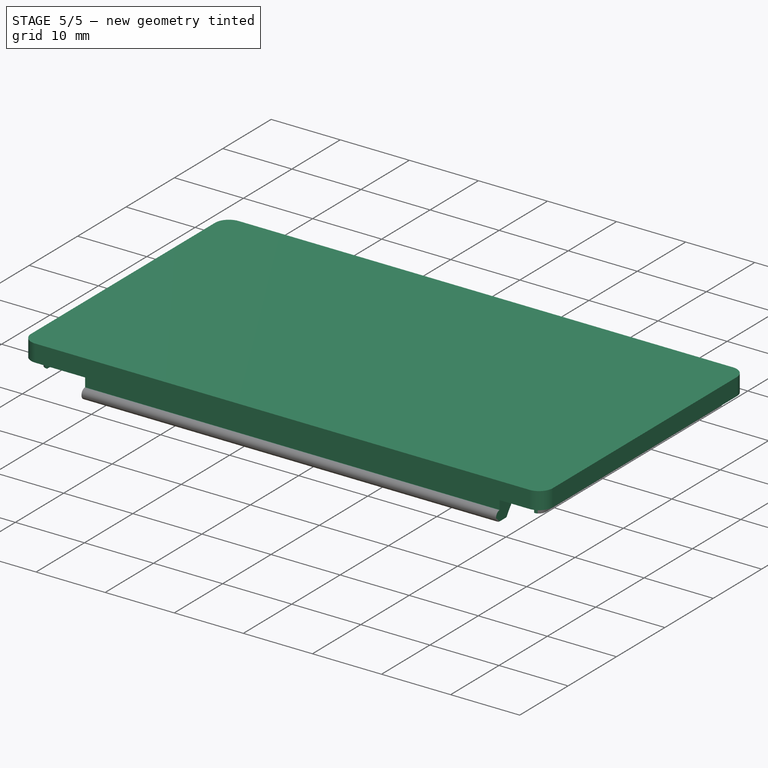
[diagram: stage 5 of 5 — iso view after this stage's code; geometry added in this stage tinted green]
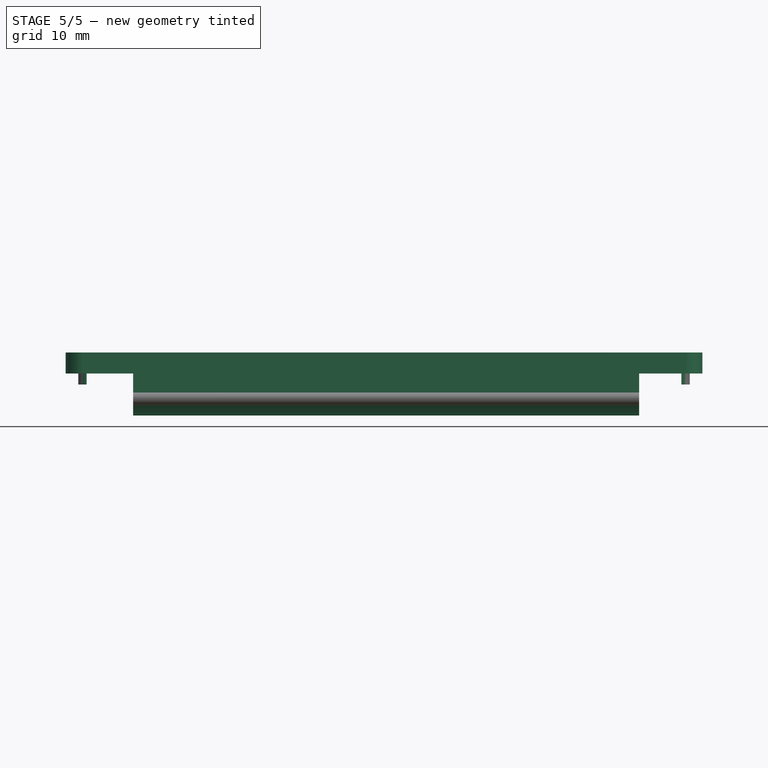
[diagram: stage 5 of 5 — front view after this stage's code; geometry added in this stage tinted green]
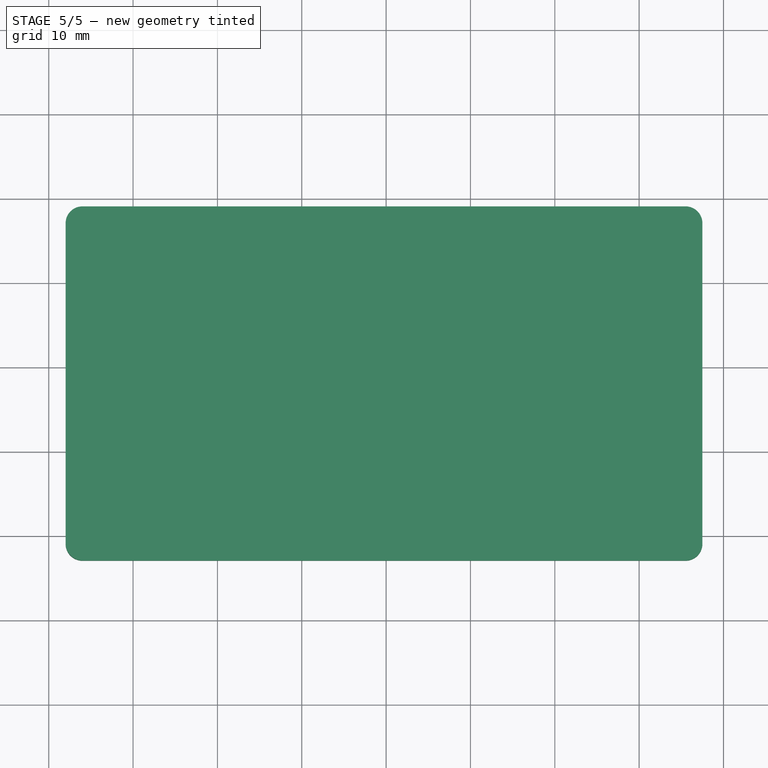
[diagram: stage 5 of 5 — top view after this stage's code; geometry added in this stage tinted green]
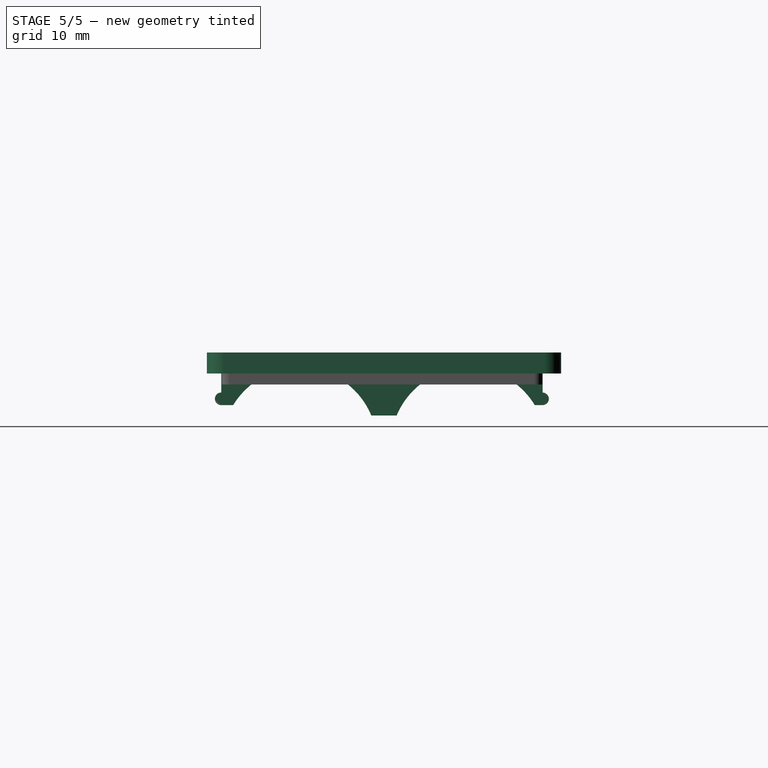
[diagram: stage 5 of 5 — right view after this stage's code; geometry added in this stage tinted green]
FEATURE [PartDesign::Body] Body001
  AllowCompound = false
  Group = -> [Sketch003,Pad003]
  Origin = -> Origin014
  Tip = -> Pad003
FEATURE [PartDesign::FeatureBase] Clone
  BaseFeature = -> Body001
  Suppressed = false
FEATURE [PartDesign::SubShapeBinder] Binder002  label="Binder18650"
  BindCopyOnChange = 0
  BindMode = 0
  ClaimChildren = false
  Context = -> Part002 [Body004.Binder002.]
  Fuse = false
  MakeFace = true
  OffsetFill = false
  OffsetIntersection = false
  OffsetJoinType = 0
  OffsetOpenResult = false
  PartialLoad = false
  Refine = true
  Relative = true
  Support = -> [Part001[Body002.Clone.Face3,Body001.Pad003.Face3]]
  _Version = 2
FEATURE [PartDesign::SubShapeBinder] Binder003  label="BindertopLidSide"
  BindCopyOnChange = 0
  BindMode = 0
  ClaimChildren = false
  Context = -> Part002 [Body004.Binder003.]
  Fuse = false
  MakeFace = true
  OffsetFill = false
  OffsetIntersection = false
  OffsetJoinType = 0
  OffsetOpenResult = false
  PartialLoad = false
  Refine = true
  Relative = true
  Support = -> [Body003[Chamfer001.Face33,Chamfer001.Face34,Chamfer001.Face32]]
  _Version = 2
FEATURE [Sketcher::SketchObject] Sketch014
  ArcFitTolerance = 1e-06
  AttachmentSupport = -> [YZ_Plane017]
  ExternalGeometry = -> [Binder002,Binder003]
  FullyConstrained = true
  MakeInternals = false
  MapMode = 5
  Placement = pos=(0,0,0) rot=(0.57735,0.57735,0.57735;2.0944rad)
  sketch-geometry (14):
    g0: ArcOfCircle CenterX=-22 CenterY=18 CenterZ=0 NormalX=0 NormalY=0 NormalZ=1 AngleXU=0 Radius=9.2 StartAngle=0.392612 EndAngle=2.59906
    g1: ArcOfCircle CenterX=-2 CenterY=18 CenterZ=0 NormalX=0 NormalY=0 NormalZ=1 AngleXU=0 Radius=9.2 StartAngle=0.54253 EndAngle=2.74898
    g2: LineSegment StartX=-13.5 StartY=21.5199 StartZ=0 EndX=-10.5 EndY=21.5199 EndZ=0
    g3: LineSegment StartX=-33 StartY=26.5 StartZ=0 EndX=-31.3 EndY=26.5 EndZ=0
    g4: LineSegment StartX=-31.3 StartY=26.5 StartZ=0 EndX=-31.3 EndY=24.25 EndZ=0
    g5: LineSegment StartX=-31.3 StartY=22.75 StartZ=0 EndX=-29.8789 EndY=22.75 EndZ=0
    g6: LineSegment StartX=9 StartY=26.5 StartZ=0 EndX=6.8 EndY=26.5 EndZ=0
    g7: LineSegment StartX=6.8 StartY=26.5 StartZ=0 EndX=6.8 EndY=24.25 EndZ=0
    g8: LineSegment StartX=-33 StartY=26.5 StartZ=0 EndX=-33 EndY=29 EndZ=0
    g9: LineSegment StartX=9 StartY=26.5 StartZ=0 EndX=9 EndY=29 EndZ=0
    g10: LineSegment StartX=9 StartY=29 StartZ=0 EndX=-33 EndY=29 EndZ=0
    g11: ArcOfCircle CenterX=6.8 CenterY=23.5 CenterZ=0 NormalX=0 NormalY=0 NormalZ=1 AngleXU=0 Radius=0.75 StartAngle=4.71239 EndAngle=7.85398
    g12: ArcOfCircle CenterX=-31.3 CenterY=23.5 CenterZ=0 NormalX=0 NormalY=0 NormalZ=1 AngleXU=0 Radius=0.75 StartAngle=1.5708 EndAngle=4.71239
    g13: LineSegment StartX=5.87893 StartY=22.75 StartZ=0 EndX=6.8 EndY=22.75 EndZ=0
  constraints (42):
    c: Equal(g1,g0)
    c: Horizontal(g0,g1)
    c: Horizontal(g0,g1)
    c: Radius(g0) = 9.2
    c: Coincident(g2,g0)
    c: Coincident(g2,g1)
    c: Coincident(g0,g-3)
    c: Coincident(g1,g-4)
    c: DistanceX(g2,g2) = 3
    c: Coincident(g3,g-5)
    c: Horizontal(g3)
    c: Coincident(g4,g3)
    c: Vertical(g4)
    c: Coincident(g5,g0)
    c: Horizontal(g5)
    c: Coincident(g6,g-6)
    c: Horizontal(g6)
    c: Coincident(g7,g6)
    c: Vertical(g7)
    c: Coincident(g8,g3)
    c: Vertical(g8)
    c: Distance(g9) = 2.5
    c: Coincident(g9,g6)
    c: Vertical(g9)
    c: Coincident(g10,g8)
    c: Horizontal(g10)
    c: Coincident(g10,g9)
    c: PointOnObject(g11,g7)
    c: Radius(g11) = 0.75
    c: PointOnObject(g12,g4)
    c: Equal(g11,g12)
    c: Horizontal(g12,g11)
    c: Coincident(g7,g11)
    c: Coincident(g4,g12)
    c: Vertical(g12,g12)
    c: DistanceY(g11,g6) = 3
    c: Coincident(g5,g12)
    c: Coincident(g13,g1)
    c: Coincident(g13,g11)
    c: Horizontal(g13)
    c: DistanceX(g6,g6) = 2.2
    c: DistanceX(g3,g3) = 1.7
FEATURE [PartDesign::Pad] Pad011
  Direction = (1,0,0)
  Length = 60
  Length2 = 10
  Midplane = true
  Placement = pos=(0,0,0) rot=(1,1,1;2.0944rad)
  Profile = -> Sketch014
  ReferenceAxis = -> Sketch014 [N_Axis]
  Refine = true
  Suppressed = false
  Type = 0
FEATURE [PartDesign::SubShapeBinder] Binder004  label="BinderTopLid_top"
  BindCopyOnChange = 0
  BindMode = 0
  ClaimChildren = false
  Context = -> Part002 [Body004.Binder004.]
  Fuse = false
  MakeFace = true
  OffsetFill = false
  OffsetIntersection = false
  OffsetJoinType = 0
  OffsetOpenResult = false
  PartialLoad = false
  Refine = true
  Relative = true
  Support = -> [Body003[Chamfer001.Face20]]
  _Version = 2
FEATURE [Sketcher::SketchObject] Sketch015
  ArcFitTolerance = 1e-06
  AttachmentSupport = -> [Pad011]
  ExternalGeometry = -> [Binder004,Pad011]
  FullyConstrained = false
  MakeInternals = false
  MapMode = 5
  Placement = pos=(-3.2e-15,9.7e-15,29) rot=(0,0,-1;1.5708rad)
  sketch-geometry (12):
    g0: ArcOfCircle CenterX=-7 CenterY=35.5 CenterZ=0 NormalX=0 NormalY=0 NormalZ=1 AngleXU=0 Radius=2 StartAngle=1.5708 EndAngle=3.14159
    g1: ArcOfCircle CenterX=31 CenterY=35.5 CenterZ=0 NormalX=0 NormalY=0 NormalZ=1 AngleXU=0 Radius=2 StartAngle=0 EndAngle=1.5708
    g2: LineSegment StartX=-9 StartY=30 StartZ=0 EndX=-9 EndY=35.5 EndZ=0
    g3: LineSegment StartX=-7 StartY=37.5 StartZ=0 EndX=31 EndY=37.5 EndZ=0
    g4: LineSegment StartX=33 StartY=35.5 StartZ=0 EndX=33 EndY=30 EndZ=0
    g5: LineSegment StartX=33 StartY=30 StartZ=0 EndX=-9 EndY=30 EndZ=0
    g6: LineSegment StartX=-9 StartY=-30 StartZ=0 EndX=33 EndY=-30 EndZ=0
    g7: LineSegment StartX=33 StartY=-30 StartZ=0 EndX=33 EndY=-36 EndZ=0
    g8: LineSegment StartX=-9 StartY=-30 StartZ=0 EndX=-9 EndY=-36 EndZ=0
    g9: LineSegment StartX=-7 StartY=-38 StartZ=0 EndX=31 EndY=-38 EndZ=0
    g10: ArcOfCircle CenterX=-7 CenterY=-36 CenterZ=0 NormalX=0 NormalY=0 NormalZ=1 AngleXU=0 Radius=2 StartAngle=3.14159 EndAngle=4.71239
    g11: ArcOfCircle CenterX=31 CenterY=-36 CenterZ=0 NormalX=0 NormalY=0 NormalZ=1 AngleXU=0 Radius=2 StartAngle=4.71239 EndAngle=6.28319
  constraints (23):
    c: Coincident(g0,g-3)
    c: Coincident(g0,g-3)
    c: Coincident(g1,g-4)
    c: Coincident(g1,g-4)
    c: Coincident(g1,g-4)
    c: Coincident(g2,g-5)
    c: Coincident(g2,g0)
    c: Coincident(g4,g1)
    c: Coincident(g4,g-6)
    c: Coincident(g5,g4)
    c: Coincident(g5,g2)
    c: Coincident(g0,g3)
    c: Coincident(g1,g3)
    c: Coincident(g6,g-9)
    c: Coincident(g6,g-10)
    c: Coincident(g7,g6)
    c: Coincident(g7,g-8)
    c: Coincident(g10,g-7)
    c: Coincident(g10,g8)
    c: Coincident(g10,g9)
    c: Coincident(g11,g-8)
    c: Coincident(g11,g9)
    c: Coincident(g11,g7)
FEATURE [PartDesign::Pad] Pad012
  BaseFeature = -> Pad011
  Direction = (0,0,1)
  Length = 0.8
  Length2 = 10
  Placement = pos=(0,0,0) rot=(1,1,1;2.0944rad)
  Profile = -> Sketch015
  ReferenceAxis = -> Sketch015 [N_Axis]
  Refine = true
  Reversed = true
  Suppressed = false
  Type = 0
FEATURE [Sketcher::SketchObject] Sketch016
  ArcFitTolerance = 1e-06
  AttachmentSupport = -> [Pad012]
  ExternalGeometry = -> [Binder004,Pad012]
  FullyConstrained = true
  MakeInternals = false
  MapMode = 5
  Placement = pos=(-9.4e-15,3.1e-15,28.2) rot=(0.707107,0.707107,0;3.14159rad)
  sketch-geometry (24):
    g0: LineSegment StartX=-31.3 StartY=30 StartZ=0 EndX=-33 EndY=30 EndZ=0
    g1: LineSegment StartX=9 StartY=30 StartZ=0 EndX=6.8 EndY=30 EndZ=0
    g2: LineSegment StartX=-31.3 StartY=30 StartZ=0 EndX=-31.3 EndY=35 EndZ=0
    g3: LineSegment StartX=6.8 StartY=30 StartZ=0 EndX=6.8 EndY=35 EndZ=0
    g4: LineSegment StartX=5.8 StartY=36 StartZ=0 EndX=-30.3 EndY=36 EndZ=0
    g5: ArcOfCircle CenterX=-30.3 CenterY=35 CenterZ=0 NormalX=0 NormalY=0 NormalZ=1 AngleXU=0 Radius=1 StartAngle=1.5708 EndAngle=3.14159
    g6: ArcOfCircle CenterX=5.8 CenterY=35 CenterZ=0 NormalX=0 NormalY=0 NormalZ=1 AngleXU=0 Radius=1 StartAngle=2.3e-15 EndAngle=1.5708
    g7: LineSegment StartX=9 StartY=30 StartZ=0 EndX=9 EndY=35.5 EndZ=0
    g8: LineSegment StartX=-33 StartY=30 StartZ=0 EndX=-33 EndY=35.5 EndZ=0
    g9: LineSegment StartX=7 StartY=37.5 StartZ=0 EndX=-31 EndY=37.5 EndZ=0
    g10: ArcOfCircle CenterX=-31 CenterY=35.5 CenterZ=0 NormalX=0 NormalY=0 NormalZ=1 AngleXU=0 Radius=2 StartAngle=1.5708 EndAngle=3.14159
    g11: ArcOfCircle CenterX=7 CenterY=35.5 CenterZ=0 NormalX=0 NormalY=0 NormalZ=1 AngleXU=0 Radius=2 StartAngle=3.26795e-07 EndAngle=1.5708
    g12: ArcOfCircle CenterX=7 CenterY=-36 CenterZ=0 NormalX=0 NormalY=0 NormalZ=1 AngleXU=0 Radius=2 StartAngle=4.71239 EndAngle=6.28318
    g13: ArcOfCircle CenterX=-31 CenterY=-36 CenterZ=0 NormalX=0 NormalY=0 NormalZ=1 AngleXU=0 Radius=2 StartAngle=3.14159 EndAngle=4.71239
    g14: LineSegment StartX=-33 StartY=-36 StartZ=0 EndX=-33 EndY=-30 EndZ=0
    g15: LineSegment StartX=-33 StartY=-30 StartZ=0 EndX=-31.3 EndY=-30 EndZ=0
    g16: LineSegment StartX=9 StartY=-30 StartZ=0 EndX=9 EndY=-36 EndZ=0
    g17: LineSegment StartX=-31 StartY=-38 StartZ=0 EndX=7 EndY=-38 EndZ=0
    g18: LineSegment StartX=-30.3 StartY=-36.5 StartZ=0 EndX=5.8 EndY=-36.5 EndZ=0
    g19: LineSegment StartX=6.8 StartY=-30 StartZ=0 EndX=6.8 EndY=-35.5 EndZ=0
    g20: LineSegment StartX=-31.3 StartY=-30 StartZ=0 EndX=-31.3 EndY=-35.5 EndZ=0
    g21: ArcOfCircle CenterX=-30.3 CenterY=-35.5 CenterZ=0 NormalX=0 NormalY=0 NormalZ=1 AngleXU=0 Radius=1 StartAngle=3.14159 EndAngle=4.71239
    g22: ArcOfCircle CenterX=5.8 CenterY=-35.5 CenterZ=0 NormalX=0 NormalY=0 NormalZ=1 AngleXU=0 Radius=1 StartAngle=4.71239 EndAngle=6.28319
    g23: LineSegment StartX=6.8 StartY=-30 StartZ=0 EndX=9 EndY=-30 EndZ=0
  constraints (52):
    c: Coincident(g0,g-8)
    c: Coincident(g0,g-7)
    c: Coincident(g1,g-6)
    c: Coincident(g1,g-9)
    c: Coincident(g2,g0)
    c: Vertical(g2)
    c: Coincident(g3,g1)
    c: Vertical(g3)
    c: PointOnObject(g4,g-3)
    c: PointOnObject(g4,g-3)
    c: Tangent(g6,g3) = -1.5708
    c: Tangent(g6,g4) = -1.5708
    c: Tangent(g5,g2) = 1.5708
    c: Tangent(g5,g4) = -1.5708
    c: Equal(g5,g6)
    c: Radius(g5) = 1
    c: Coincident(g7,g1)
    c: Coincident(g8,g0)
    c: Coincident(g8,g-4)
    c: Coincident(g7,g-5)
    c: Coincident(g9,g-5)
    c: Coincident(g9,g-4)
    c: Coincident(g10,g8)
    c: Tangent(g10,g9) = -1.5708
    c: Tangent(g11,g9) = -1.5708
    c: Coincident(g11,g7)
    c: Coincident(g12,g-13)
    c: Coincident(g13,g-14)
    c: Coincident(g13,g-14)
    c: Coincident(g14,g-11)
    c: Coincident(g23,g-12)
    c: Coincident(g17,g13)
    c: PointOnObject(g18,g-10)
    c: PointOnObject(g18,g-10)
    c: Vertical(g19)
    c: Vertical(g20)
    c: Tangent(g22,g18) = -1.5708
    c: Tangent(g22,g19) = 1.5708
    c: Tangent(g21,g20) = -1.5708
    c: Tangent(g21,g18) = -1.5708
    c: Equal(g21,g22)
    c: Radius(g22) = 1
    c: Coincident(g15,g20)
    c: Coincident(g23,g19)
    c: Coincident(g16,g12)
    c: Coincident(g12,g-13)
    c: Coincident(g16,g23)
    c: Tangent(g13,g14) = 1.5708
    c: Coincident(g14,g15)
    c: Coincident(g19,g-16)
    c: Coincident(g15,g-15)
    c: Tangent(g12,g17) = -1.5708
FEATURE [PartDesign::Pad] Pad013
  BaseFeature = -> Pad012
  Direction = (0,0,-1)
  Length = 1.7
  Length2 = 10
  Placement = pos=(0,0,0) rot=(1,1,1;2.0944rad)
  Profile = -> Sketch016
  ReferenceAxis = -> Sketch016 [N_Axis]
  Refine = true
  Suppressed = false
  Type = 0
FEATURE [Sketcher::SketchObject] Sketch018
  ArcFitTolerance = 1e-06
  AttachmentSupport = -> [Pad013]
  ExternalGeometry = -> [Pad013]
  FullyConstrained = false
  MakeInternals = false
  MapMode = 5
  Placement = pos=(-1.88e-14,6.3e-15,28.2) rot=(0.707107,0.707107,0;3.14159rad)
  sketch-geometry (8):
    g0: LineSegment StartX=-31.3 StartY=35 StartZ=0 EndX=6.8 EndY=35 EndZ=0
    g1: LineSegment StartX=5.8 StartY=36 StartZ=0 EndX=-30.3 EndY=36 EndZ=0
    g2: ArcOfCircle CenterX=-30.3 CenterY=35 CenterZ=0 NormalX=0 NormalY=0 NormalZ=1 AngleXU=0 Radius=1 StartAngle=1.5708 EndAngle=3.14159
    g3: ArcOfCircle CenterX=5.8 CenterY=35 CenterZ=0 NormalX=0 NormalY=0 NormalZ=1 AngleXU=0 Radius=1 StartAngle=2.2e-15 EndAngle=1.5708
    g4: ArcOfCircle CenterX=5.8 CenterY=-35.5 CenterZ=0 NormalX=0 NormalY=0 NormalZ=1 AngleXU=0 Radius=1 StartAngle=4.71239 EndAngle=6.28319
    g5: ArcOfCircle CenterX=-30.3 CenterY=-35.5 CenterZ=0 NormalX=0 NormalY=0 NormalZ=1 AngleXU=0 Radius=1 StartAngle=3.14159 EndAngle=4.71239
    g6: LineSegment StartX=-31.3 StartY=-35.5 StartZ=0 EndX=6.8 EndY=-35.5 EndZ=0
    g7: LineSegment StartX=5.8 StartY=-36.5 StartZ=0 EndX=-30.3 EndY=-36.5 EndZ=0
  constraints (13):
    c: Coincident(g0,g-3)
    c: Coincident(g0,g-4)
    c: Coincident(g2,g-3)
    c: Coincident(g2,g0)
    c: Coincident(g3,g-4)
    c: Coincident(g3,g0)
    c: Tangent(g3,g1) = -1.5708
    c: Tangent(g2,g1) = -1.5708
    c: Coincident(g4,g-6)
    c: Coincident(g4,g-6)
    c: Coincident(g5,g-5)
    c: Coincident(g5,g-5)
    c: Coincident(g5,g-5)
FEATURE [PartDesign::Pad] Pad014
  BaseFeature = -> Pad013
  Direction = (0,0,-1)
  Length = 3
  Length2 = 10
  Placement = pos=(0,0,0) rot=(1,1,1;2.0944rad)
  Profile = -> Sketch018
  ReferenceAxis = -> Sketch018 [N_Axis]
  Refine = true
  Suppressed = false
  Type = 0
FEATURE [PartDesign::Chamfer] Chamfer002
  Angle = 45
  Base = -> Pad014 [Edge89,Edge92]
  BaseFeature = -> Pad014
  ChamferType = 0
  FlipDirection = false
  Placement = pos=(0,0,0) rot=(1,1,1;2.0944rad)
  Refine = true
  Size = 1.5
  Size2 = 1
  SupportTransform = false
  Suppressed = false
  UseAllEdges = false
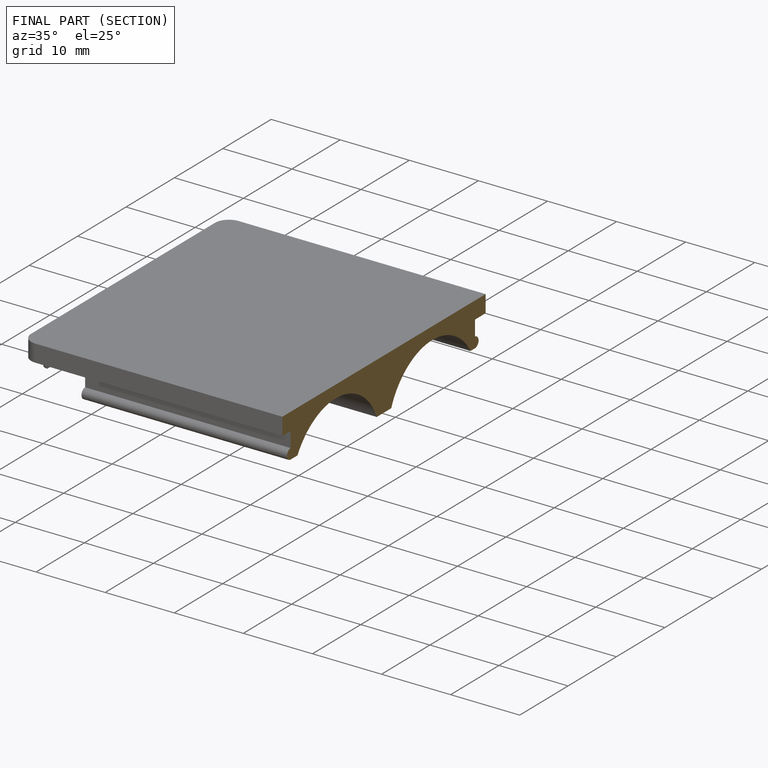
[diagram: finished part — half-section view (interior)]
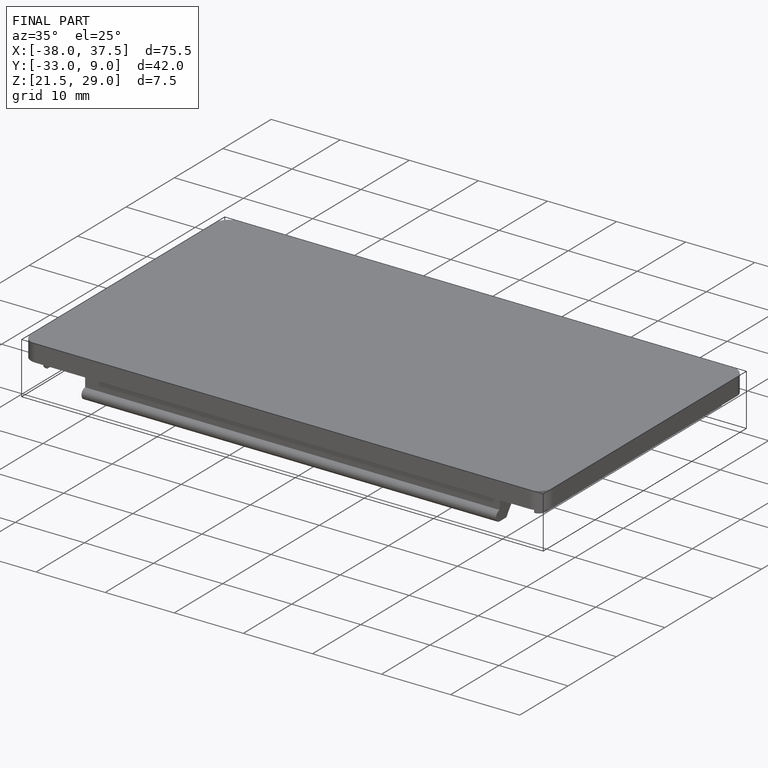
[diagram: finished part — iso view with bounding-box wireframe]
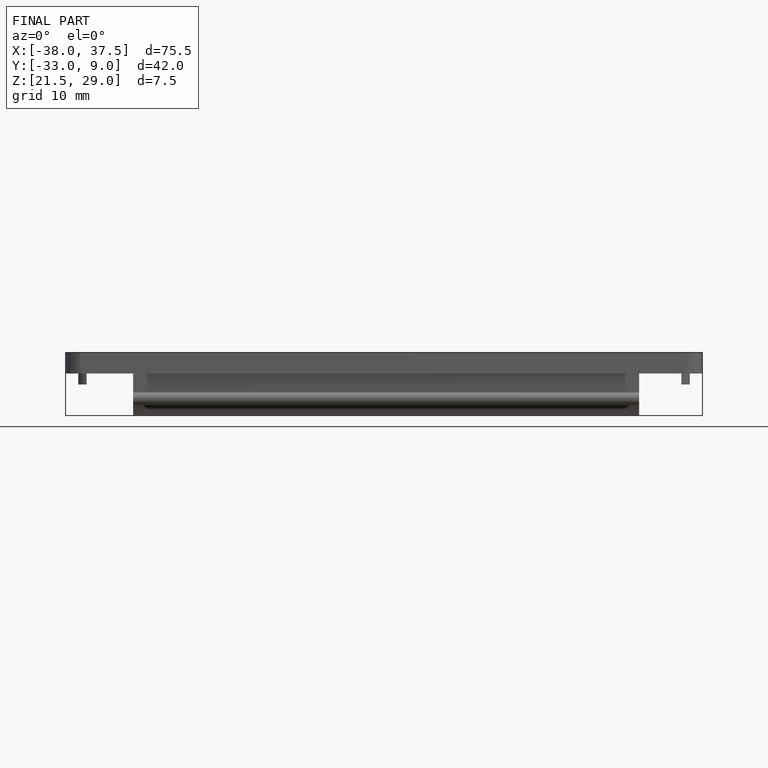
[diagram: finished part — front view with bounding-box wireframe]
